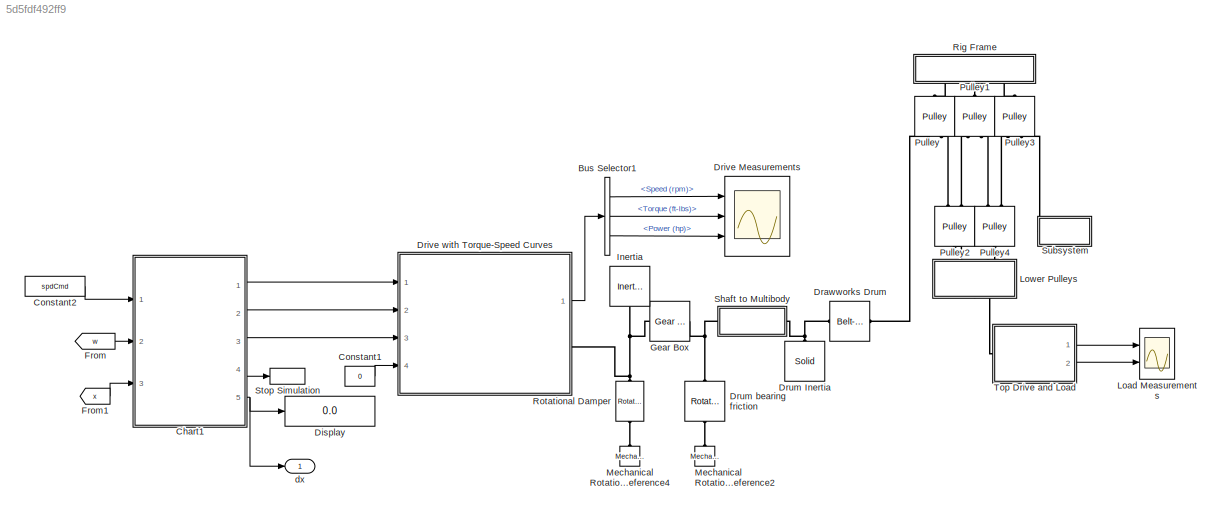
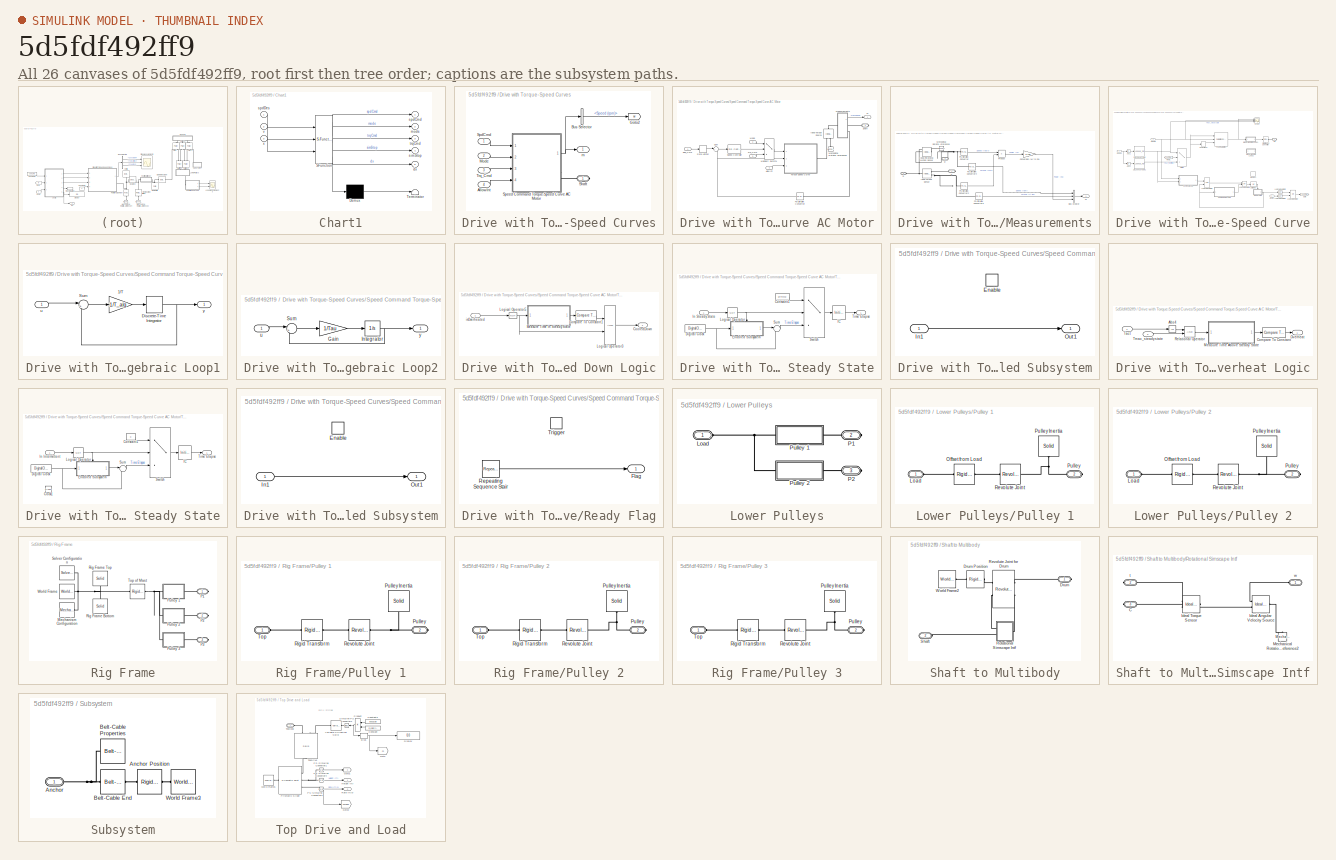
[diagram: thumbnail index - all 26 canvases of the model, root first then tree order]
MODEL slx_5d5fdf492ff9
KIND model
CONFIG AbsTol = auto
CONFIG EnableMultiTasking = off
CONFIG FixedStep = auto
CONFIG InitFcn = Ts = 10e-4;        % SPS/Overall Simulation time step\nTssc = 10*Ts;       % Simscape simulation time step\n\nG = 10;\nRdrum = 0.25;\nNp = 5;\nm_topdrive = 1000;\nm_drillstring = 22500;\nRpulley = Rdrum;\n\nm = m_topdrive + m_drillstring;\n\n% Top/Bottom Distance\nxtop = 48*0.3048;\nxbott = 0;\n\n% Maximum Torque/Power of Drive\nTmax = 8000*1.36;\nPmax = 1500*746;\n\n% Initial Conditions\nv0 = 0; %m/s\nx0 = 0; %m\n\n% Gr...<+14ch>
CONFIG MaxStep = auto
CONFIG MinStep = auto
CONFIG PreLoadFcn = addpath('CAD_Files');\nwarning('off','sm:sli:setup:compile:LocalSolverNotSupported');\n\nloadScale = 1;
CONFIG RelTol = 1e-3
CONFIG SampleTimeConstraint = Unconstrained
CONFIG Solver = ode3
CONFIG SolverName = ode3
CONFIG StartTime = 0.0
CONFIG StopTime = 1000
BLOCK [BusSelector] Bus Selector1
  OutputAsBus = off
  OutputSignals = Speed (rpm),Torque (ft-lbs),Power (hp)
  Ports = [1, 3]
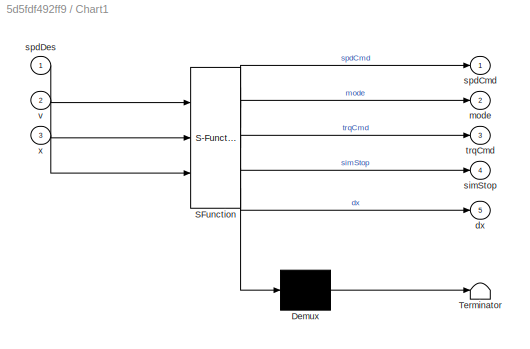
BLOCK [SubSystem] Chart1
  ErrorFcn = Stateflow.Translate.translate
  PermitHierarchicalResolution = ExplicitOnly
  Ports = [3, 5]
  RequestExecContextInheritance = off
  SFBlockType = Chart
  TreatAsAtomicUnit = on
BLOCK [Demux] Chart1/ Demux 
  Outputs = 1
  Ports = [1, 1]
BLOCK [S-Function] Chart1/ SFunction 
  EnableBusSupport = on
  FunctionName = sf_sfun
  PortCounts = [3 6]
  Ports = [3, 6]
  SFcnIsStateOwnerBlock = off
  SFunctionDeploymentMode = off
  Tag = Stateflow S-Function drawWorks_forOpt 1
BLOCK [Terminator] Chart1/ Terminator 
BLOCK [Outport] Chart1/dx
  IconDisplay = Port number
  Port = 5
BLOCK [Outport] Chart1/mode
  IconDisplay = Port number
  Port = 2
BLOCK [Outport] Chart1/simStop
  IconDisplay = Port number
  Port = 4
BLOCK [Outport] Chart1/spdCmd
  IconDisplay = Port number
BLOCK [Inport] Chart1/spdDes
  IconDisplay = Port number
BLOCK [Outport] Chart1/trqCmd
  IconDisplay = Port number
  Port = 3
BLOCK [Inport] Chart1/v
  IconDisplay = Port number
  Port = 2
BLOCK [Inport] Chart1/x
  IconDisplay = Port number
  Port = 3
BLOCK [Constant] Constant1
  Value = 0
BLOCK [Constant] Constant2
  Value = spdCmd
BLOCK [Display] Display
  Decimation = 1
  Ports = [1]
BLOCK [Reference] Drawworks Drum  REF=sm_lib/Belts and Cables/Belt-Cable Spool
  Ports = [0, 0, 0, 0, 0, 1, 1]
  SourceBlock = sm_lib/Belts and Cables/Belt-Cable Spool
  SourceProductBaseCode = MS
  SourceProductName = Simscape Multibody
  SourceType = Belt-Cable Spool
BLOCK [Scope] Drive Measurements
  Floating = off
  NumInputPorts = 3
  Ports = [3]
  ScopeSpecificationString = Simulink.scopes.TimeScopeBlockCfg('CurrentConfiguration', extmgr.ConfigurationSet(extmgr.Configuration('Core','General UI',true),extmgr.Configuration('Core','Source UI',true),extmgr.Configuration('Sources','WiredSimulink',true,'DataLoggingSaveFormat','Array','DataLoggingDecimation','1','DataLoggingDecimateData',true,'DataLoggingVariableName','ScopeData1'),extmgr.Configuration('Visuals','Time Domai...<+3075ch>
BLOCK [SubSystem] Drive with Torque-Speed Curves
  Ports = [4, 1, 0, 0, 0, 0, 1]
  RequestExecContextInheritance = off
BLOCK [Inport] Drive with Torque-Speed Curves/AllowInt
  IconDisplay = Port number
  Port = 4
BLOCK [BusSelector] Drive with Torque-Speed Curves/Bus Selector
  OutputAsBus = off
  OutputSignals = Speed (rpm)
  Ports = [1, 1]
BLOCK [Goto] Drive with Torque-Speed Curves/Goto2
  GotoTag = w
  TagVisibility = global
BLOCK [Inport] Drive with Torque-Speed Curves/Mode
  IconDisplay = Port number
  Port = 2
BLOCK [PMIOPort] Drive with Torque-Speed Curves/Shaft
  Side = Right
BLOCK [Inport] Drive with Torque-Speed Curves/SpdCmd
  IconDisplay = Port number
BLOCK [SubSystem] Drive with Torque-Speed Curves/Speed Command Torque-Speed Curve AC Motor
  Ports = [4, 1, 0, 0, 0, 0, 1]
  RequestExecContextInheritance = off
BLOCK [Inport] Drive with Torque-Speed Curves/Speed Command Torque-Speed Curve AC Motor/AllowInt
  IconDisplay = Port number
  Port = 4
BLOCK [Reference] Drive with Torque-Speed Curves/Speed Command Torque-Speed Curve AC Motor/Ideal Torque Source  REF=fl_lib/Mechanical/Mechanical Sources/Ideal Torque Source
  Ports = [0, 0, 0, 0, 0, 1, 2]
  SourceBlock = fl_lib/Mechanical/Mechanical Sources/Ideal Torque Source
  SourceProductBaseCode = SS
  SourceProductName = Simscape
  SourceType = Ideal Torque Source
BLOCK [SubSystem] Drive with Torque-Speed Curves/Speed Command Torque-Speed Curve AC Motor/Measurements
  Ports = [0, 1, 0, 0, 0, 1, 2]
  RequestExecContextInheritance = off
BLOCK [BusCreator] Drive with Torque-Speed Curves/Speed Command Torque-Speed Curve AC Motor/Measurements/Bus Creator
  DisplayOption = bar
  InheritFromInputs = on
  Inputs = 3
  Ports = [3, 1]
BLOCK [PMIOPort] Drive with Torque-Speed Curves/Speed Command Torque-Speed Curve AC Motor/Measurements/C
  Side = Right
BLOCK [Gain] Drive with Torque-Speed Curves/Speed Command Torque-Speed Curve AC Motor/Measurements/Conversion (W to hp)
  Gain = 1/746
  OutDataTypeStr = Inherit: Inherit via internal rule
  ParamDataTypeStr = Inherit: Inherit via internal rule
  SaturateOnIntegerOverflow = off
BLOCK [Reference] Drive with Torque-Speed Curves/Speed Command Torque-Speed Curve AC Motor/Measurements/Ideal Rotational Motion Sensor  REF=fl_lib/Mechanical/Mechanical Sensors/Ideal Rotational
Motion Sensor
  Ports = [0, 0, 0, 0, 0, 1, 3]
  SourceBlock = fl_lib/Mechanical/Mechanical Sensors/Ideal Rotational\nMotion Sensor
  SourceProductBaseCode = SS
  SourceProductName = Simscape
  SourceType = Ideal Rotational\nMotion Sensor
BLOCK [Reference] Drive with Torque-Speed Curves/Speed Command Torque-Speed Curve AC Motor/Measurements/Ideal Torque Sensor  REF=fl_lib/Mechanical/Mechanical Sensors/Ideal Torque Sensor
  Ports = [0, 0, 0, 0, 0, 1, 2]
  SourceBlock = fl_lib/Mechanical/Mechanical Sensors/Ideal Torque Sensor
  SourceProductBaseCode = SS
  SourceProductName = Simscape
  SourceType = Ideal Torque Sensor
BLOCK [Reference] Drive with Torque-Speed Curves/Speed Command Torque-Speed Curve AC Motor/Measurements/Mechanical Rotational Reference3  REF=fl_lib/Mechanical/Rotational Elements/Mechanical
Rotational Reference
  Ports = [0, 0, 0, 0, 0, 1]
  SourceBlock = fl_lib/Mechanical/Rotational Elements/Mechanical\nRotational Reference
  SourceProductBaseCode = SS
  SourceProductName = Simscape
  SourceType = Mechanical\nRotational Reference
BLOCK [Reference] Drive with Torque-Speed Curves/Speed Command Torque-Speed Curve AC Motor/Measurements/PS-Simulink Converter  REF=nesl_utility/PS-Simulink
Converter
  Ports = [0, 1, 0, 0, 0, 1]
  SourceBlock = nesl_utility/PS-Simulink\nConverter
  SourceProductBaseCode = SS
  SourceProductName = Simscape
  SourceType = PS-Simulink\nConverter
BLOCK [Reference] Drive with Torque-Speed Curves/Speed Command Torque-Speed Curve AC Motor/Measurements/PS-Simulink Converter2  REF=nesl_utility/PS-Simulink
Converter
  Ports = [0, 1, 0, 0, 0, 1]
  SourceBlock = nesl_utility/PS-Simulink\nConverter
  SourceProductBaseCode = SS
  SourceProductName = Simscape
  SourceType = PS-Simulink\nConverter
BLOCK [Reference] Drive with Torque-Speed Curves/Speed Command Torque-Speed Curve AC Motor/Measurements/PS-Simulink Converter3  REF=nesl_utility/PS-Simulink
Converter
  Ports = [0, 1, 0, 0, 0, 1]
  SourceBlock = nesl_utility/PS-Simulink\nConverter
  SourceProductBaseCode = SS
  SourceProductName = Simscape
  SourceType = PS-Simulink\nConverter
BLOCK [Reference] Drive with Torque-Speed Curves/Speed Command Torque-Speed Curve AC Motor/Measurements/PS-Simulink Converter4  REF=nesl_utility/PS-Simulink
Converter
  Ports = [0, 1, 0, 0, 0, 1]
  SourceBlock = nesl_utility/PS-Simulink\nConverter
  SourceProductBaseCode = SS
  SourceProductName = Simscape
  SourceType = PS-Simulink\nConverter
BLOCK [Product] Drive with Torque-Speed Curves/Speed Command Torque-Speed Curve AC Motor/Measurements/Product
  InputSameDT = off
  OutDataTypeStr = Inherit: Inherit via internal rule
  Ports = [2, 1]
  RndMeth = Floor
  SaturateOnIntegerOverflow = off
BLOCK [PMIOPort] Drive with Torque-Speed Curves/Speed Command Torque-Speed Curve AC Motor/Measurements/R
  Port = 2
  Side = Left
BLOCK [Outport] Drive with Torque-Speed Curves/Speed Command Torque-Speed Curve AC Motor/Measurements/m
  IconDisplay = Port number
BLOCK [PMIOPort] Drive with Torque-Speed Curves/Speed Command Torque-Speed Curve AC Motor/Measurements/w
  Port = 3
  Side = Right
BLOCK [Reference] Drive with Torque-Speed Curves/Speed Command Torque-Speed Curve AC Motor/Mechanical Rotational Reference3  REF=fl_lib/Mechanical/Rotational Elements/Mechanical
Rotational Reference
  Ports = [0, 0, 0, 0, 0, 1]
  SourceBlock = fl_lib/Mechanical/Rotational Elements/Mechanical\nRotational Reference
  SourceProductBaseCode = SS
  SourceProductName = Simscape
  SourceType = Mechanical\nRotational Reference
BLOCK [Inport] Drive with Torque-Speed Curves/Speed Command Torque-Speed Curve AC Motor/Mode
  IconDisplay = Port number
  Port = 2
BLOCK [MultiPortSwitch] Drive with Torque-Speed Curves/Speed Command Torque-Speed Curve AC Motor/Multiport Switch1
  InputSameDT = off
  Inputs = 2
  Ports = [3, 1]
BLOCK [Reference] Drive with Torque-Speed Curves/Speed Command Torque-Speed Curve AC Motor/PS-Simulink Converter  REF=nesl_utility/PS-Simulink
Converter
  Ports = [0, 1, 0, 0, 0, 1]
  SourceBlock = nesl_utility/PS-Simulink\nConverter
  SourceProductBaseCode = SS
  SourceProductName = Simscape
  SourceType = PS-Simulink\nConverter
BLOCK [RateLimiter] Drive with Torque-Speed Curves/Speed Command Torque-Speed Curve AC Motor/Rate Limiter
  FallingSlewLimit = -wrate
  RisingSlewLimit = wrate
  SampleTimeMode = inherited
BLOCK [PMIOPort] Drive with Torque-Speed Curves/Speed Command Torque-Speed Curve AC Motor/Shaft
  Side = Right
BLOCK [Inport] Drive with Torque-Speed Curves/Speed Command Torque-Speed Curve AC Motor/Spd_Cmd
  IconDisplay = Port number
BLOCK [Reference] Drive with Torque-Speed Curves/Speed Command Torque-Speed Curve AC Motor/Speed Controller  REF=simulink/Continuous/PID Controller
  Ports = [1, 1]
  SourceBlock = simulink/Continuous/PID Controller
  SourceProductBaseCode = SL
  SourceProductName = Simulink
  SourceType = PID 1dof
BLOCK [Sum] Drive with Torque-Speed Curves/Speed Command Torque-Speed Curve AC Motor/Sum
  IconShape = round
  InputSameDT = off
  Inputs = |+-
  OutDataTypeStr = Inherit: Inherit via internal rule
  Ports = [2, 1]
  SaturateOnIntegerOverflow = off
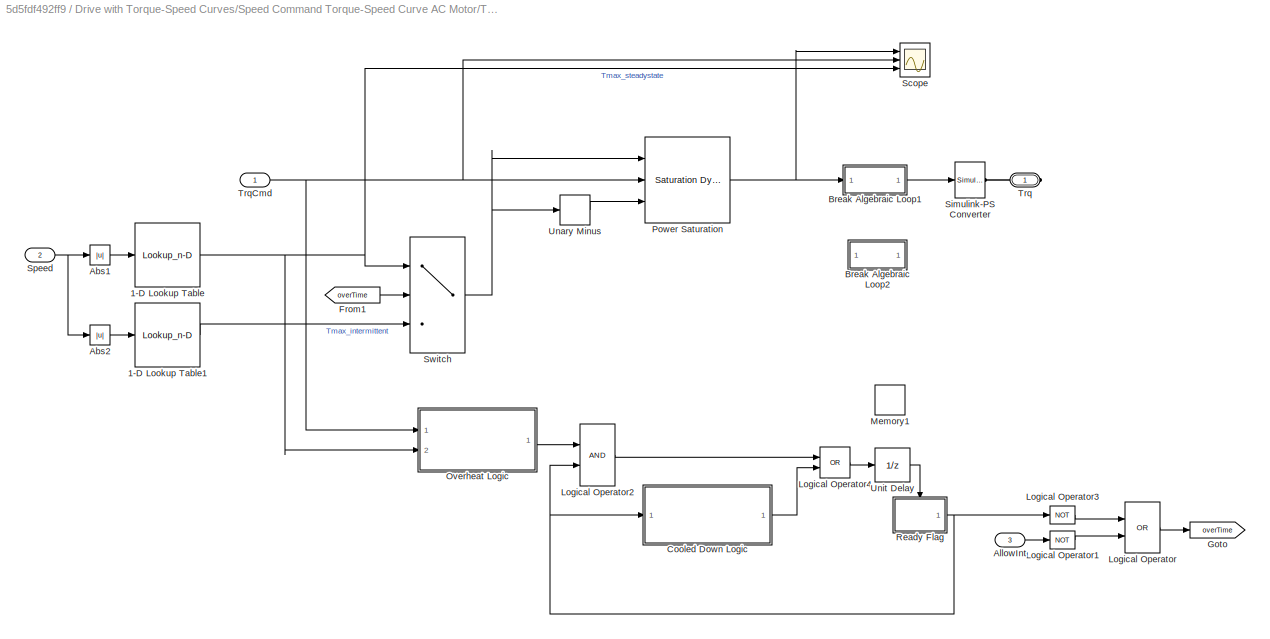
BLOCK [SubSystem] Drive with Torque-Speed Curves/Speed Command Torque-Speed Curve AC Motor/Torque-Speed Curve
  Ports = [3, 0, 0, 0, 0, 0, 1]
  RequestExecContextInheritance = off
BLOCK [Lookup_n-D] Drive with Torque-Speed Curves/Speed Command Torque-Speed Curve AC Motor/Torque-Speed Curve/1-D Lookup Table
  BreakpointsForDimension1 = contSpd
  InternalRulePriority = Speed
  NumberOfTableDimensions = 1
  Ports = [1, 1]
  RndMeth = Simplest
  Table = contTrq
BLOCK [Lookup_n-D] Drive with Torque-Speed Curves/Speed Command Torque-Speed Curve AC Motor/Torque-Speed Curve/1-D Lookup Table1
  BreakpointsForDimension1 = intSpd
  InternalRulePriority = Speed
  NumberOfTableDimensions = 1
  Ports = [1, 1]
  RndMeth = Simplest
  Table = intTrq
BLOCK [Abs] Drive with Torque-Speed Curves/Speed Command Torque-Speed Curve AC Motor/Torque-Speed Curve/Abs1
  SaturateOnIntegerOverflow = off
BLOCK [Abs] Drive with Torque-Speed Curves/Speed Command Torque-Speed Curve AC Motor/Torque-Speed Curve/Abs2
  SaturateOnIntegerOverflow = off
BLOCK [Inport] Drive with Torque-Speed Curves/Speed Command Torque-Speed Curve AC Motor/Torque-Speed Curve/AllowInt
  IconDisplay = Port number
  Port = 3
BLOCK [SubSystem] Drive with Torque-Speed Curves/Speed Command Torque-Speed Curve AC Motor/Torque-Speed Curve/Break Algebraic Loop1
  Ports = [1, 1]
  RequestExecContextInheritance = off
BLOCK [Gain] Drive with Torque-Speed Curves/Speed Command Torque-Speed Curve AC Motor/Torque-Speed Curve/Break Algebraic Loop1/1//T
  Gain = 1/T_alg
  OutDataTypeStr = Inherit: Inherit via internal rule
  ParamDataTypeStr = Inherit: Inherit via internal rule
  SaturateOnIntegerOverflow = off
BLOCK [DiscreteIntegrator] Drive with Torque-Speed Curves/Speed Command Torque-Speed Curve AC Motor/Torque-Speed Curve/Break Algebraic Loop1/Discrete-Time Integrator
  ICPrevOutput = DiscIntNeverNeededParam
  ICPrevScaledInput = DiscIntNeverNeededParam
  InitialCondition = min([Rdrum/(G*(Np-1))*(m_topdrive+m_drillstring)*9.81*0.737562*loadScale intTrq(1)])
  InitialConditionSetting = Auto
  Ports = [1, 1]
  SampleTime = -1
BLOCK [Sum] Drive with Torque-Speed Curves/Speed Command Torque-Speed Curve AC Motor/Torque-Speed Curve/Break Algebraic Loop1/Sum
  IconShape = round
  InputSameDT = off
  Inputs = |+-
  OutDataTypeStr = Inherit: Inherit via internal rule
  Ports = [2, 1]
  SaturateOnIntegerOverflow = off
BLOCK [Inport] Drive with Torque-Speed Curves/Speed Command Torque-Speed Curve AC Motor/Torque-Speed Curve/Break Algebraic Loop1/u
  IconDisplay = Port number
BLOCK [Outport] Drive with Torque-Speed Curves/Speed Command Torque-Speed Curve AC Motor/Torque-Speed Curve/Break Algebraic Loop1/y
  IconDisplay = Port number
BLOCK [SubSystem] Drive with Torque-Speed Curves/Speed Command Torque-Speed Curve AC Motor/Torque-Speed Curve/Break Algebraic Loop2
  Commented = on
  Ports = [1, 1]
  RequestExecContextInheritance = off
BLOCK [Gain] Drive with Torque-Speed Curves/Speed Command Torque-Speed Curve AC Motor/Torque-Speed Curve/Break Algebraic Loop2/Gain
  Gain = 1/Tau
  OutDataTypeStr = Inherit: Inherit via internal rule
  ParamDataTypeStr = Inherit: Inherit via internal rule
  SaturateOnIntegerOverflow = off
BLOCK [Integrator] Drive with Torque-Speed Curves/Speed Command Torque-Speed Curve AC Motor/Torque-Speed Curve/Break Algebraic Loop2/Integrator
  InitialCondition = Rdrum/(G*(Np-1))*(m_topdrive+m_drillstring)*9.81*0.737562
  Ports = [1, 1]
BLOCK [Sum] Drive with Torque-Speed Curves/Speed Command Torque-Speed Curve AC Motor/Torque-Speed Curve/Break Algebraic Loop2/Sum
  IconShape = round
  InputSameDT = off
  Inputs = |+-
  OutDataTypeStr = Inherit: Inherit via internal rule
  Ports = [2, 1]
  SaturateOnIntegerOverflow = off
BLOCK [Inport] Drive with Torque-Speed Curves/Speed Command Torque-Speed Curve AC Motor/Torque-Speed Curve/Break Algebraic Loop2/u
  IconDisplay = Port number
BLOCK [Outport] Drive with Torque-Speed Curves/Speed Command Torque-Speed Curve AC Motor/Torque-Speed Curve/Break Algebraic Loop2/y
  IconDisplay = Port number
BLOCK [SubSystem] Drive with Torque-Speed Curves/Speed Command Torque-Speed Curve AC Motor/Torque-Speed Curve/Cooled Down Logic
  Ports = [1, 1]
  RequestExecContextInheritance = off
BLOCK [Reference] Drive with Torque-Speed Curves/Speed Command Torque-Speed Curve AC Motor/Torque-Speed Curve/Cooled Down Logic/Compare To Constant1  REF=simulink/Logic and Bit
Operations/Compare
To Constant
  Ports = [1, 1]
  SourceBlock = simulink/Logic and Bit\nOperations/Compare\nTo Constant
  SourceProductBaseCode = SL
  SourceProductName = Simulink
  SourceType = Compare To Constant
BLOCK [Outport] Drive with Torque-Speed Curves/Speed Command Torque-Speed Curve AC Motor/Torque-Speed Curve/Cooled Down Logic/CooledDown
  IconDisplay = Port number
BLOCK [Logic] Drive with Torque-Speed Curves/Speed Command Torque-Speed Curve AC Motor/Torque-Speed Curve/Cooled Down Logic/Logical Operator3
  AllPortsSameDT = off
  OutDataTypeStr = boolean
  Ports = [2, 1]
BLOCK [Logic] Drive with Torque-Speed Curves/Speed Command Torque-Speed Curve AC Motor/Torque-Speed Curve/Cooled Down Logic/Logical Operator5
  AllPortsSameDT = off
  Operator = NOT
  OutDataTypeStr = boolean
  Ports = [1, 1]
BLOCK [SubSystem] Drive with Torque-Speed Curves/Speed Command Torque-Speed Curve AC Motor/Torque-Speed Curve/Cooled Down Logic/Measure Time In Steady State
  Ports = [1, 1]
  RequestExecContextInheritance = off
BLOCK [Constant] Drive with Torque-Speed Curves/Speed Command Torque-Speed Curve AC Motor/Torque-Speed Curve/Cooled Down Logic/Measure Time In Steady State/Constant1
  Value = offTime
BLOCK [DigitalClock] Drive with Torque-Speed Curves/Speed Command Torque-Speed Curve AC Motor/Torque-Speed Curve/Cooled Down Logic/Measure Time In Steady State/Digital Clock
  SampleTime = Tssc
BLOCK [SubSystem] Drive with Torque-Speed Curves/Speed Command Torque-Speed Curve AC Motor/Torque-Speed Curve/Cooled Down Logic/Measure Time In Steady State/Enabled Subsystem
  Ports = [1, 1, 1]
  RequestExecContextInheritance = off
  TreatAsAtomicUnit = on
BLOCK [EnablePort] Drive with Torque-Speed Curves/Speed Command Torque-Speed Curve AC Motor/Torque-Speed Curve/Cooled Down Logic/Measure Time In Steady State/Enabled Subsystem/Enable
  Ports = []
BLOCK [Inport] Drive with Torque-Speed Curves/Speed Command Torque-Speed Curve AC Motor/Torque-Speed Curve/Cooled Down Logic/Measure Time In Steady State/Enabled Subsystem/In1
  IconDisplay = Port number
BLOCK [Outport] Drive with Torque-Speed Curves/Speed Command Torque-Speed Curve AC Motor/Torque-Speed Curve/Cooled Down Logic/Measure Time In Steady State/Enabled Subsystem/Out1
  IconDisplay = Port number
BLOCK [InitialCondition] Drive with Torque-Speed Curves/Speed Command Torque-Speed Curve AC Motor/Torque-Speed Curve/Cooled Down Logic/Measure Time In Steady State/IC
  Value = offTime
BLOCK [Inport] Drive with Torque-Speed Curves/Speed Command Torque-Speed Curve AC Motor/Torque-Speed Curve/Cooled Down Logic/Measure Time In Steady State/In Steady State
  IconDisplay = Port number
BLOCK [Logic] Drive with Torque-Speed Curves/Speed Command Torque-Speed Curve AC Motor/Torque-Speed Curve/Cooled Down Logic/Measure Time In Steady State/Logical Operator
  AllPortsSameDT = off
  Operator = NOT
  OutDataTypeStr = boolean
  Ports = [1, 1]
BLOCK [Sum] Drive with Torque-Speed Curves/Speed Command Torque-Speed Curve AC Motor/Torque-Speed Curve/Cooled Down Logic/Measure Time In Steady State/Sum
  IconShape = round
  InputSameDT = off
  Inputs = |-+
  OutDataTypeStr = Inherit: Inherit via internal rule
  Ports = [2, 1]
  SaturateOnIntegerOverflow = off
BLOCK [Switch] Drive with Torque-Speed Curves/Speed Command Torque-Speed Curve AC Motor/Torque-Speed Curve/Cooled Down Logic/Measure Time In Steady State/Switch
  Criteria = u2 ~= 0
  InputSameDT = off
  SaturateOnIntegerOverflow = off
BLOCK [Outport] Drive with Torque-Speed Curves/Speed Command Torque-Speed Curve AC Motor/Torque-Speed Curve/Cooled Down Logic/Measure Time In Steady State/Time Elapse
  IconDisplay = Port number
BLOCK [Inport] Drive with Torque-Speed Curves/Speed Command Torque-Speed Curve AC Motor/Torque-Speed Curve/Cooled Down Logic/isOverheated
  IconDisplay = Port number
BLOCK [From] Drive with Torque-Speed Curves/Speed Command Torque-Speed Curve AC Motor/Torque-Speed Curve/From1
  GotoTag = overTime
BLOCK [Goto] Drive with Torque-Speed Curves/Speed Command Torque-Speed Curve AC Motor/Torque-Speed Curve/Goto
  GotoTag = overTime
BLOCK [Logic] Drive with Torque-Speed Curves/Speed Command Torque-Speed Curve AC Motor/Torque-Speed Curve/Logical Operator
  AllPortsSameDT = off
  Operator = OR
  OutDataTypeStr = boolean
  Ports = [2, 1]
BLOCK [Logic] Drive with Torque-Speed Curves/Speed Command Torque-Speed Curve AC Motor/Torque-Speed Curve/Logical Operator1
  AllPortsSameDT = off
  Operator = NOT
  OutDataTypeStr = boolean
  Ports = [1, 1]
BLOCK [Logic] Drive with Torque-Speed Curves/Speed Command Torque-Speed Curve AC Motor/Torque-Speed Curve/Logical Operator2
  AllPortsSameDT = off
  OutDataTypeStr = boolean
  Ports = [2, 1]
BLOCK [Logic] Drive with Torque-Speed Curves/Speed Command Torque-Speed Curve AC Motor/Torque-Speed Curve/Logical Operator3
  AllPortsSameDT = off
  Operator = NOT
  OutDataTypeStr = boolean
  Ports = [1, 1]
BLOCK [Logic] Drive with Torque-Speed Curves/Speed Command Torque-Speed Curve AC Motor/Torque-Speed Curve/Logical Operator4
  AllPortsSameDT = off
  Operator = OR
  OutDataTypeStr = boolean
  Ports = [2, 1]
BLOCK [Memory] Drive with Torque-Speed Curves/Speed Command Torque-Speed Curve AC Motor/Torque-Speed Curve/Memory1
  Commented = on
BLOCK [SubSystem] Drive with Torque-Speed Curves/Speed Command Torque-Speed Curve AC Motor/Torque-Speed Curve/Overheat Logic
  Ports = [2, 1]
  RequestExecContextInheritance = off
BLOCK [Abs] Drive with Torque-Speed Curves/Speed Command Torque-Speed Curve AC Motor/Torque-Speed Curve/Overheat Logic/Abs4
  SaturateOnIntegerOverflow = off
BLOCK [Reference] Drive with Torque-Speed Curves/Speed Command Torque-Speed Curve AC Motor/Torque-Speed Curve/Overheat Logic/Compare To Constant  REF=simulink/Logic and Bit
Operations/Compare
To Constant
  Ports = [1, 1]
  SourceBlock = simulink/Logic and Bit\nOperations/Compare\nTo Constant
  SourceProductBaseCode = SL
  SourceProductName = Simulink
  SourceType = Compare To Constant
BLOCK [SubSystem] Drive with Torque-Speed Curves/Speed Command Torque-Speed Curve AC Motor/Torque-Speed Curve/Overheat Logic/Measure Time Above Steady State
  Ports = [1, 1]
  RequestExecContextInheritance = off
BLOCK [Clock] Drive with Torque-Speed Curves/Speed Command Torque-Speed Curve AC Motor/Torque-Speed Curve/Overheat Logic/Measure Time Above Steady State/Clock1
  Commented = on
BLOCK [Constant] Drive with Torque-Speed Curves/Speed Command Torque-Speed Curve AC Motor/Torque-Speed Curve/Overheat Logic/Measure Time Above Steady State/Constant1
  Value = 0
BLOCK [DigitalClock] Drive with Torque-Speed Curves/Speed Command Torque-Speed Curve AC Motor/Torque-Speed Curve/Overheat Logic/Measure Time Above Steady State/Digital Clock
  SampleTime = Tssc
BLOCK [SubSystem] Drive with Torque-Speed Curves/Speed Command Torque-Speed Curve AC Motor/Torque-Speed Curve/Overheat Logic/Measure Time Above Steady State/Enabled Subsystem
  Ports = [1, 1, 1]
  RequestExecContextInheritance = off
  TreatAsAtomicUnit = on
BLOCK [EnablePort] Drive with Torque-Speed Curves/Speed Command Torque-Speed Curve AC Motor/Torque-Speed Curve/Overheat Logic/Measure Time Above Steady State/Enabled Subsystem/Enable
  Ports = []
BLOCK [Inport] Drive with Torque-Speed Curves/Speed Command Torque-Speed Curve AC Motor/Torque-Speed Curve/Overheat Logic/Measure Time Above Steady State/Enabled Subsystem/In1
  IconDisplay = Port number
BLOCK [Outport] Drive with Torque-Speed Curves/Speed Command Torque-Speed Curve AC Motor/Torque-Speed Curve/Overheat Logic/Measure Time Above Steady State/Enabled Subsystem/Out1
  IconDisplay = Port number
BLOCK [InitialCondition] Drive with Torque-Speed Curves/Speed Command Torque-Speed Curve AC Motor/Torque-Speed Curve/Overheat Logic/Measure Time Above Steady State/IC
  Value = 0
BLOCK [Inport] Drive with Torque-Speed Curves/Speed Command Torque-Speed Curve AC Motor/Torque-Speed Curve/Overheat Logic/Measure Time Above Steady State/In Intermittent
  IconDisplay = Port number
BLOCK [Logic] Drive with Torque-Speed Curves/Speed Command Torque-Speed Curve AC Motor/Torque-Speed Curve/Overheat Logic/Measure Time Above Steady State/Logical Operator
  AllPortsSameDT = off
  Operator = NOT
  OutDataTypeStr = boolean
  Ports = [1, 1]
BLOCK [Sum] Drive with Torque-Speed Curves/Speed Command Torque-Speed Curve AC Motor/Torque-Speed Curve/Overheat Logic/Measure Time Above Steady State/Sum
  IconShape = round
  InputSameDT = off
  Inputs = |-+
  OutDataTypeStr = Inherit: Inherit via internal rule
  Ports = [2, 1]
  SaturateOnIntegerOverflow = off
BLOCK [Switch] Drive with Torque-Speed Curves/Speed Command Torque-Speed Curve AC Motor/Torque-Speed Curve/Overheat Logic/Measure Time Above Steady State/Switch
  Criteria = u2 ~= 0
  InputSameDT = off
  SaturateOnIntegerOverflow = off
BLOCK [Outport] Drive with Torque-Speed Curves/Speed Command Torque-Speed Curve AC Motor/Torque-Speed Curve/Overheat Logic/Measure Time Above Steady State/Time Elapse
  IconDisplay = Port number
BLOCK [Outport] Drive with Torque-Speed Curves/Speed Command Torque-Speed Curve AC Motor/Torque-Speed Curve/Overheat Logic/Overheat
  IconDisplay = Port number
BLOCK [RelationalOperator] Drive with Torque-Speed Curves/Speed Command Torque-Speed Curve AC Motor/Torque-Speed Curve/Overheat Logic/Relational Operator
  InputSameDT = off
  OutDataTypeStr = boolean
  Ports = [2, 1]
  RndMeth = Simplest
BLOCK [Inport] Drive with Torque-Speed Curves/Speed Command Torque-Speed Curve AC Motor/Torque-Speed Curve/Overheat Logic/Tact
  IconDisplay = Port number
BLOCK [Inport] Drive with Torque-Speed Curves/Speed Command Torque-Speed Curve AC Motor/Torque-Speed Curve/Overheat Logic/Tmax_steadystate
  IconDisplay = Port number
  Port = 2
BLOCK [Reference] Drive with Torque-Speed Curves/Speed Command Torque-Speed Curve AC Motor/Torque-Speed Curve/Power Saturation  REF=simulink/Discontinuities/Saturation
Dynamic
  Ports = [3, 1]
  SourceBlock = simulink/Discontinuities/Saturation\nDynamic
  SourceProductBaseCode = SL
  SourceProductName = Simulink
  SourceType = Saturation Dynamic
BLOCK [SubSystem] Drive with Torque-Speed Curves/Speed Command Torque-Speed Curve AC Motor/Torque-Speed Curve/Ready Flag
  Ports = [0, 1, 0, 1]
  RequestExecContextInheritance = off
  TreatAsAtomicUnit = on
BLOCK [Outport] Drive with Torque-Speed Curves/Speed Command Torque-Speed Curve AC Motor/Torque-Speed Curve/Ready Flag/Flag
  IconDisplay = Port number
  InitialOutput = 1
BLOCK [Reference] Drive with Torque-Speed Curves/Speed Command Torque-Speed Curve AC Motor/Torque-Speed Curve/Ready Flag/Repeating Sequence Stair  REF=simulink/Sources/Repeating
Sequence
Stair
  Ports = [0, 1]
  SourceBlock = simulink/Sources/Repeating\nSequence\nStair
  SourceProductBaseCode = SL
  SourceProductName = Simulink
  SourceType = Repeating Sequence Stair
BLOCK [TriggerPort] Drive with Torque-Speed Curves/Speed Command Torque-Speed Curve AC Motor/Torque-Speed Curve/Ready Flag/Trigger
  Ports = []
  StatesWhenEnabling = held
  VariantControl = Variant
BLOCK [Scope] Drive with Torque-Speed Curves/Speed Command Torque-Speed Curve AC Motor/Torque-Speed Curve/Scope
  Floating = off
  NumInputPorts = 3
  Ports = [3]
  ScopeSpecificationString = Simulink.scopes.TimeScopeBlockCfg('CurrentConfiguration', extmgr.ConfigurationSet(extmgr.Configuration('Core','General UI',true),extmgr.Configuration('Core','Source UI',true),extmgr.Configuration('Sources','WiredSimulink',true,'DataLoggingVariableName','ScopeData2'),extmgr.Configuration('Visuals','Time Domain',true,'SerializedDisplays',{struct('MinYLimReal','-124998790.38695','MaxYLimReal','112499...<+1569ch>
BLOCK [Reference] Drive with Torque-Speed Curves/Speed Command Torque-Speed Curve AC Motor/Torque-Speed Curve/Simulink-PS Converter  REF=nesl_utility/Simulink-PS
Converter
  Ports = [1, 0, 0, 0, 0, 0, 1]
  SourceBlock = nesl_utility/Simulink-PS\nConverter
  SourceProductBaseCode = SS
  SourceProductName = Simscape
  SourceType = Simulink-PS\nConverter
BLOCK [Inport] Drive with Torque-Speed Curves/Speed Command Torque-Speed Curve AC Motor/Torque-Speed Curve/Speed
  IconDisplay = Port number
  Port = 2
BLOCK [Switch] Drive with Torque-Speed Curves/Speed Command Torque-Speed Curve AC Motor/Torque-Speed Curve/Switch
  Criteria = u2 > Threshold
  InputSameDT = off
  SaturateOnIntegerOverflow = off
BLOCK [PMIOPort] Drive with Torque-Speed Curves/Speed Command Torque-Speed Curve AC Motor/Torque-Speed Curve/Trq
  Side = Right
BLOCK [Inport] Drive with Torque-Speed Curves/Speed Command Torque-Speed Curve AC Motor/Torque-Speed Curve/TrqCmd
  IconDisplay = Port number
BLOCK [UnaryMinus] Drive with Torque-Speed Curves/Speed Command Torque-Speed Curve AC Motor/Torque-Speed Curve/Unary Minus
BLOCK [UnitDelay] Drive with Torque-Speed Curves/Speed Command Torque-Speed Curve AC Motor/Torque-Speed Curve/Unit Delay
  InputProcessing = Elements as channels (sample based)
  SampleTime = Tssc
BLOCK [Inport] Drive with Torque-Speed Curves/Speed Command Torque-Speed Curve AC Motor/Trq_Cmd
  IconDisplay = Port number
  Port = 3
BLOCK [Outport] Drive with Torque-Speed Curves/Speed Command Torque-Speed Curve AC Motor/m
  IconDisplay = Port number
BLOCK [Inport] Drive with Torque-Speed Curves/Trq_Cmd
  IconDisplay = Port number
  Port = 3
BLOCK [Outport] Drive with Torque-Speed Curves/m
  IconDisplay = Port number
BLOCK [Reference] Drum Inertia  REF=sm_lib/Body Elements/Solid
  Ports = [0, 0, 0, 0, 0, 1]
  SourceBlock = sm_lib/Body Elements/Solid
  SourceProductBaseCode = MS
  SourceProductName = Simscape Multibody
  SourceType = Solid
BLOCK [Reference] Drum bearing friction  REF=fl_lib/Mechanical/Rotational Elements/Rotational Friction
  Ports = [0, 0, 0, 0, 0, 1, 1]
  SourceBlock = fl_lib/Mechanical/Rotational Elements/Rotational Friction
  SourceProductBaseCode = SS
  SourceProductName = Simscape
  SourceType = Rotational Friction
BLOCK [From] From
  GotoTag = w
  TagVisibility = global
BLOCK [From] From1
  GotoTag = x
  TagVisibility = global
BLOCK [Reference] Gear Box  REF=fl_lib/Mechanical/Mechanisms/Gear Box
  Ports = [0, 0, 0, 0, 0, 1, 1]
  SourceBlock = fl_lib/Mechanical/Mechanisms/Gear Box
  SourceProductBaseCode = SS
  SourceProductName = Simscape
  SourceType = Gear Box
BLOCK [Reference] Inertia  REF=fl_lib/Mechanical/Rotational Elements/Inertia
  Ports = [0, 0, 0, 0, 0, 1]
  SourceBlock = fl_lib/Mechanical/Rotational Elements/Inertia
  SourceProductBaseCode = SS
  SourceProductName = Simscape
  SourceType = Inertia
BLOCK [Scope] Load Measurements
  Floating = off
  NumInputPorts = 2
  Ports = [2]
  ScopeSpecificationString = Simulink.scopes.TimeScopeBlockCfg('CurrentConfiguration', extmgr.ConfigurationSet(extmgr.Configuration('Core','General UI',true),extmgr.Configuration('Core','Source UI',true),extmgr.Configuration('Sources','WiredSimulink',true,'DataLoggingVariableName','ScopeData2','SampleTime','Tssc'),extmgr.Configuration('Visuals','Time Domain',true,'SerializedDisplays',{struct('MinYLimReal','-60.74678','MaxYLim...<+2159ch>
BLOCK [SubSystem] Lower Pulleys
  Ports = [0, 0, 0, 0, 0, 1, 2]
  RequestExecContextInheritance = off
BLOCK [PMIOPort] Lower Pulleys/Load
  Side = Left
BLOCK [PMIOPort] Lower Pulleys/P1
  Port = 2
  Side = Right
BLOCK [PMIOPort] Lower Pulleys/P2
  Port = 3
  Side = Right
BLOCK [SubSystem] Lower Pulleys/Pulley 1
  Ports = [0, 0, 0, 0, 0, 1, 1]
  RequestExecContextInheritance = off
BLOCK [PMIOPort] Lower Pulleys/Pulley 1/Load
  Side = Left
BLOCK [Reference] Lower Pulleys/Pulley 1/Offset from Load  REF=sm_lib/Frames and
Transforms/Rigid
Transform
  Ports = [0, 0, 0, 0, 0, 1, 1]
  SourceBlock = sm_lib/Frames and\nTransforms/Rigid\nTransform
  SourceProductBaseCode = MS
  SourceProductName = Simscape Multibody
  SourceType = Rigid\nTransform
BLOCK [PMIOPort] Lower Pulleys/Pulley 1/Pulley
  Port = 2
  Side = Right
BLOCK [Reference] Lower Pulleys/Pulley 1/Pulley Inertia  REF=sm_lib/Body Elements/Solid
  Ports = [0, 0, 0, 0, 0, 1]
  SourceBlock = sm_lib/Body Elements/Solid
  SourceProductBaseCode = MS
  SourceProductName = Simscape Multibody
  SourceType = Solid
BLOCK [Reference] Lower Pulleys/Pulley 1/Revolute Joint  REF=sm_lib/Joints/Revolute Joint
  Ports = [0, 0, 0, 0, 0, 1, 1]
  SourceBlock = sm_lib/Joints/Revolute Joint
  SourceProductBaseCode = MS
  SourceProductName = Simscape Multibody
  SourceType = Revolute Joint
BLOCK [SubSystem] Lower Pulleys/Pulley 2
  Ports = [0, 0, 0, 0, 0, 1, 1]
  RequestExecContextInheritance = off
BLOCK [PMIOPort] Lower Pulleys/Pulley 2/Load
  Side = Left
BLOCK [Reference] Lower Pulleys/Pulley 2/Offset from Load  REF=sm_lib/Frames and
Transforms/Rigid
Transform
  Ports = [0, 0, 0, 0, 0, 1, 1]
  SourceBlock = sm_lib/Frames and\nTransforms/Rigid\nTransform
  SourceProductBaseCode = MS
  SourceProductName = Simscape Multibody
  SourceType = Rigid\nTransform
BLOCK [PMIOPort] Lower Pulleys/Pulley 2/Pulley
  Port = 2
  Side = Right
BLOCK [Reference] Lower Pulleys/Pulley 2/Pulley Inertia  REF=sm_lib/Body Elements/Solid
  Ports = [0, 0, 0, 0, 0, 1]
  SourceBlock = sm_lib/Body Elements/Solid
  SourceProductBaseCode = MS
  SourceProductName = Simscape Multibody
  SourceType = Solid
BLOCK [Reference] Lower Pulleys/Pulley 2/Revolute Joint  REF=sm_lib/Joints/Revolute Joint
  Ports = [0, 0, 0, 0, 0, 1, 1]
  SourceBlock = sm_lib/Joints/Revolute Joint
  SourceProductBaseCode = MS
  SourceProductName = Simscape Multibody
  SourceType = Revolute Joint
BLOCK [Reference] Mechanical Rotational Reference2  REF=fl_lib/Mechanical/Rotational Elements/Mechanical
Rotational Reference
  Ports = [0, 0, 0, 0, 0, 1]
  SourceBlock = fl_lib/Mechanical/Rotational Elements/Mechanical\nRotational Reference
  SourceProductBaseCode = SS
  SourceProductName = Simscape
  SourceType = Mechanical\nRotational Reference
BLOCK [Reference] Mechanical Rotational Reference4  REF=fl_lib/Mechanical/Rotational Elements/Mechanical
Rotational Reference
  Ports = [0, 0, 0, 0, 0, 1]
  SourceBlock = fl_lib/Mechanical/Rotational Elements/Mechanical\nRotational Reference
  SourceProductBaseCode = SS
  SourceProductName = Simscape
  SourceType = Mechanical\nRotational Reference
BLOCK [Reference] Pulley  REF=sm_lib/Belts and Cables/Pulley
  Ports = [0, 0, 0, 0, 0, 1, 2]
  SourceBlock = sm_lib/Belts and Cables/Pulley
  SourceProductBaseCode = MS
  SourceProductName = Simscape Multibody
  SourceType = Pulley
BLOCK [Reference] Pulley1  REF=sm_lib/Belts and Cables/Pulley
  Ports = [0, 0, 0, 0, 0, 1, 2]
  SourceBlock = sm_lib/Belts and Cables/Pulley
  SourceProductBaseCode = MS
  SourceProductName = Simscape Multibody
  SourceType = Pulley
BLOCK [Reference] Pulley2  REF=sm_lib/Belts and Cables/Pulley
  Ports = [0, 0, 0, 0, 0, 1, 2]
  SourceBlock = sm_lib/Belts and Cables/Pulley
  SourceProductBaseCode = MS
  SourceProductName = Simscape Multibody
  SourceType = Pulley
BLOCK [Reference] Pulley3  REF=sm_lib/Belts and Cables/Pulley
  Ports = [0, 0, 0, 0, 0, 1, 2]
  SourceBlock = sm_lib/Belts and Cables/Pulley
  SourceProductBaseCode = MS
  SourceProductName = Simscape Multibody
  SourceType = Pulley
BLOCK [Reference] Pulley4  REF=sm_lib/Belts and Cables/Pulley
  Ports = [0, 0, 0, 0, 0, 1, 2]
  SourceBlock = sm_lib/Belts and Cables/Pulley
  SourceProductBaseCode = MS
  SourceProductName = Simscape Multibody
  SourceType = Pulley
BLOCK [SubSystem] Rig Frame
  Ports = [0, 0, 0, 0, 0, 0, 3]
  RequestExecContextInheritance = off
BLOCK [Reference] Rig Frame/Mechanism Configuration  REF=sm_lib/Utilities/Mechanism
Configuration
  Ports = [0, 0, 0, 0, 0, 0, 1]
  SourceBlock = sm_lib/Utilities/Mechanism\nConfiguration
  SourceProductBaseCode = MS
  SourceProductName = Simscape Multibody
  SourceType = Mechanism\nConfiguration
BLOCK [PMIOPort] Rig Frame/P1
  Side = Right
BLOCK [PMIOPort] Rig Frame/P2
  Port = 2
  Side = Right
BLOCK [PMIOPort] Rig Frame/P3
  Port = 3
  Side = Right
BLOCK [SubSystem] Rig Frame/Pulley 1
  Ports = [0, 0, 0, 0, 0, 1, 1]
  RequestExecContextInheritance = off
BLOCK [PMIOPort] Rig Frame/Pulley 1/Pulley
  Port = 2
  Side = Right
BLOCK [Reference] Rig Frame/Pulley 1/Pulley Inertia  REF=sm_lib/Body Elements/Solid
  Ports = [0, 0, 0, 0, 0, 1]
  SourceBlock = sm_lib/Body Elements/Solid
  SourceProductBaseCode = MS
  SourceProductName = Simscape Multibody
  SourceType = Solid
BLOCK [Reference] Rig Frame/Pulley 1/Revolute Joint  REF=sm_lib/Joints/Revolute Joint
  Ports = [0, 0, 0, 0, 0, 1, 1]
  SourceBlock = sm_lib/Joints/Revolute Joint
  SourceProductBaseCode = MS
  SourceProductName = Simscape Multibody
  SourceType = Revolute Joint
BLOCK [Reference] Rig Frame/Pulley 1/Rigid Transform  REF=sm_lib/Frames and
Transforms/Rigid
Transform
  Ports = [0, 0, 0, 0, 0, 1, 1]
  SourceBlock = sm_lib/Frames and\nTransforms/Rigid\nTransform
  SourceProductBaseCode = MS
  SourceProductName = Simscape Multibody
  SourceType = Rigid\nTransform
BLOCK [PMIOPort] Rig Frame/Pulley 1/Top
  Side = Left
BLOCK [SubSystem] Rig Frame/Pulley 2
  Ports = [0, 0, 0, 0, 0, 1, 1]
  RequestExecContextInheritance = off
BLOCK [PMIOPort] Rig Frame/Pulley 2/Pulley
  Port = 2
  Side = Right
BLOCK [Reference] Rig Frame/Pulley 2/Pulley Inertia  REF=sm_lib/Body Elements/Solid
  Ports = [0, 0, 0, 0, 0, 1]
  SourceBlock = sm_lib/Body Elements/Solid
  SourceProductBaseCode = MS
  SourceProductName = Simscape Multibody
  SourceType = Solid
BLOCK [Reference] Rig Frame/Pulley 2/Revolute Joint  REF=sm_lib/Joints/Revolute Joint
  Ports = [0, 0, 0, 0, 0, 1, 1]
  SourceBlock = sm_lib/Joints/Revolute Joint
  SourceProductBaseCode = MS
  SourceProductName = Simscape Multibody
  SourceType = Revolute Joint
BLOCK [Reference] Rig Frame/Pulley 2/Rigid Transform  REF=sm_lib/Frames and
Transforms/Rigid
Transform
  Ports = [0, 0, 0, 0, 0, 1, 1]
  SourceBlock = sm_lib/Frames and\nTransforms/Rigid\nTransform
  SourceProductBaseCode = MS
  SourceProductName = Simscape Multibody
  SourceType = Rigid\nTransform
BLOCK [PMIOPort] Rig Frame/Pulley 2/Top
  Side = Left
BLOCK [SubSystem] Rig Frame/Pulley 3
  Ports = [0, 0, 0, 0, 0, 1, 1]
  RequestExecContextInheritance = off
BLOCK [PMIOPort] Rig Frame/Pulley 3/Pulley
  Port = 2
  Side = Right
BLOCK [Reference] Rig Frame/Pulley 3/Pulley Inertia  REF=sm_lib/Body Elements/Solid
  Ports = [0, 0, 0, 0, 0, 1]
  SourceBlock = sm_lib/Body Elements/Solid
  SourceProductBaseCode = MS
  SourceProductName = Simscape Multibody
  SourceType = Solid
BLOCK [Reference] Rig Frame/Pulley 3/Revolute Joint  REF=sm_lib/Joints/Revolute Joint
  Ports = [0, 0, 0, 0, 0, 1, 1]
  SourceBlock = sm_lib/Joints/Revolute Joint
  SourceProductBaseCode = MS
  SourceProductName = Simscape Multibody
  SourceType = Revolute Joint
BLOCK [Reference] Rig Frame/Pulley 3/Rigid Transform  REF=sm_lib/Frames and
Transforms/Rigid
Transform
  Ports = [0, 0, 0, 0, 0, 1, 1]
  SourceBlock = sm_lib/Frames and\nTransforms/Rigid\nTransform
  SourceProductBaseCode = MS
  SourceProductName = Simscape Multibody
  SourceType = Rigid\nTransform
BLOCK [PMIOPort] Rig Frame/Pulley 3/Top
  Side = Left
BLOCK [Reference] Rig Frame/Rig Frame Bottom  REF=sm_lib/Body Elements/Solid
  Ports = [0, 0, 0, 0, 0, 1]
  SourceBlock = sm_lib/Body Elements/Solid
  SourceProductBaseCode = MS
  SourceProductName = Simscape Multibody
  SourceType = Solid
BLOCK [Reference] Rig Frame/Rig Frame Top  REF=sm_lib/Body Elements/Solid
  Ports = [0, 0, 0, 0, 0, 1]
  SourceBlock = sm_lib/Body Elements/Solid
  SourceProductBaseCode = MS
  SourceProductName = Simscape Multibody
  SourceType = Solid
BLOCK [Reference] Rig Frame/Solver Configuration   REF=nesl_utility/Solver
Configuration
  Ports = [0, 0, 0, 0, 0, 0, 1]
  SourceBlock = nesl_utility/Solver\nConfiguration
  SourceProductBaseCode = SS
  SourceProductName = Simscape
  SourceType = Solver\nConfiguration
BLOCK [Reference] Rig Frame/Top of Mast  REF=sm_lib/Frames and
Transforms/Rigid
Transform
  Ports = [0, 0, 0, 0, 0, 1, 1]
  SourceBlock = sm_lib/Frames and\nTransforms/Rigid\nTransform
  SourceProductBaseCode = MS
  SourceProductName = Simscape Multibody
  SourceType = Rigid\nTransform
BLOCK [Reference] Rig Frame/World Frame  REF=sm_lib/Frames and
Transforms/World Frame
  Ports = [0, 0, 0, 0, 0, 0, 1]
  SourceBlock = sm_lib/Frames and\nTransforms/World Frame
  SourceProductBaseCode = MS
  SourceProductName = Simscape Multibody
  SourceType = World Frame
BLOCK [Reference] Rotational Damper  REF=fl_lib/Mechanical/Rotational Elements/Rotational Damper
  Ports = [0, 0, 0, 0, 0, 1, 1]
  SourceBlock = fl_lib/Mechanical/Rotational Elements/Rotational Damper
  SourceProductBaseCode = SS
  SourceProductName = Simscape
  SourceType = Rotational Damper
BLOCK [SubSystem] Shaft to Multibody
  Ports = [0, 0, 0, 0, 0, 1, 1]
  RequestExecContextInheritance = off
BLOCK [PMIOPort] Shaft to Multibody/Drum
  Side = Right
BLOCK [Reference] Shaft to Multibody/Drum Position  REF=sm_lib/Frames and
Transforms/Rigid
Transform
  Ports = [0, 0, 0, 0, 0, 1, 1]
  SourceBlock = sm_lib/Frames and\nTransforms/Rigid\nTransform
  SourceProductBaseCode = MS
  SourceProductName = Simscape Multibody
  SourceType = Rigid\nTransform
BLOCK [Reference] Shaft to Multibody/Revolute Joint for Drum  REF=sm_lib/Joints/Revolute Joint
  Ports = [0, 0, 0, 0, 0, 2, 2]
  SourceBlock = sm_lib/Joints/Revolute Joint
  SourceProductBaseCode = MS
  SourceProductName = Simscape Multibody
  SourceType = Revolute Joint
BLOCK [SubSystem] Shaft to Multibody/Rotational Simscape Intf
  Ports = [0, 0, 0, 0, 0, 1, 2]
  RequestExecContextInheritance = off
BLOCK [PMIOPort] Shaft to Multibody/Rotational Simscape Intf/C
  Port = 3
  Side = Right
BLOCK [Reference] Shaft to Multibody/Rotational Simscape Intf/Ideal Angular Velocity Source  REF=fl_lib/Mechanical/Mechanical Sources/Ideal Angular
Velocity Source
  Ports = [0, 0, 0, 0, 0, 1, 2]
  SourceBlock = fl_lib/Mechanical/Mechanical Sources/Ideal Angular\nVelocity Source
  SourceProductBaseCode = SS
  SourceProductName = Simscape
  SourceType = Ideal Angular\nVelocity Source
BLOCK [Reference] Shaft to Multibody/Rotational Simscape Intf/Ideal Torque Sensor  REF=fl_lib/Mechanical/Mechanical Sensors/Ideal Torque Sensor
  Ports = [0, 0, 0, 0, 0, 1, 2]
  SourceBlock = fl_lib/Mechanical/Mechanical Sensors/Ideal Torque Sensor
  SourceProductBaseCode = SS
  SourceProductName = Simscape
  SourceType = Ideal Torque Sensor
BLOCK [Reference] Shaft to Multibody/Rotational Simscape Intf/Mechanical Rotational Reference2  REF=fl_lib/Mechanical/Rotational Elements/Mechanical
Rotational Reference
  Ports = [0, 0, 0, 0, 0, 1]
  SourceBlock = fl_lib/Mechanical/Rotational Elements/Mechanical\nRotational Reference
  SourceProductBaseCode = SS
  SourceProductName = Simscape
  SourceType = Mechanical\nRotational Reference
BLOCK [PMIOPort] Shaft to Multibody/Rotational Simscape Intf/t
  Port = 2
  Side = Right
BLOCK [PMIOPort] Shaft to Multibody/Rotational Simscape Intf/w
  Side = Left
BLOCK [PMIOPort] Shaft to Multibody/Shaft
  Port = 2
  Side = Left
BLOCK [Reference] Shaft to Multibody/World Frame2  REF=sm_lib/Frames and
Transforms/World Frame
  Ports = [0, 0, 0, 0, 0, 0, 1]
  SourceBlock = sm_lib/Frames and\nTransforms/World Frame
  SourceProductBaseCode = MS
  SourceProductName = Simscape Multibody
  SourceType = World Frame
BLOCK [Stop] Stop Simulation
BLOCK [SubSystem] Subsystem
  Ports = [0, 0, 0, 0, 0, 1]
  RequestExecContextInheritance = off
BLOCK [PMIOPort] Subsystem/Anchor
  Side = Left
BLOCK [Reference] Subsystem/Anchor Position  REF=sm_lib/Frames and
Transforms/Rigid
Transform
  Ports = [0, 0, 0, 0, 0, 1, 1]
  SourceBlock = sm_lib/Frames and\nTransforms/Rigid\nTransform
  SourceProductBaseCode = MS
  SourceProductName = Simscape Multibody
  SourceType = Rigid\nTransform
BLOCK [Reference] Subsystem/Belt-Cable End  REF=sm_lib/Belts and Cables/Belt-Cable End
  Ports = [0, 0, 0, 0, 0, 1, 1]
  SourceBlock = sm_lib/Belts and Cables/Belt-Cable End
  SourceProductBaseCode = MS
  SourceProductName = Simscape Multibody
  SourceType = Belt-Cable End
BLOCK [Reference] Subsystem/Belt-Cable Properties  REF=sm_lib/Belts and Cables/Belt-Cable
Properties
  Ports = [0, 0, 0, 0, 0, 1]
  SourceBlock = sm_lib/Belts and Cables/Belt-Cable\nProperties
  SourceProductBaseCode = MS
  SourceProductName = Simscape Multibody
  SourceType = Belt-Cable\nProperties
BLOCK [Reference] Subsystem/World Frame3  REF=sm_lib/Frames and
Transforms/World Frame
  Ports = [0, 0, 0, 0, 0, 0, 1]
  SourceBlock = sm_lib/Frames and\nTransforms/World Frame
  SourceProductBaseCode = MS
  SourceProductName = Simscape Multibody
  SourceType = World Frame
BLOCK [SubSystem] Top Drive and Load
  Ports = [0, 2, 0, 0, 0, 1]
  RequestExecContextInheritance = off
BLOCK [Bias] Top Drive and Load/Bias
  Bias = m_topdrive
  SaturateOnIntegerOverflow = off
BLOCK [Constant] Top Drive and Load/Constant
  Value = m_drillstring
BLOCK [Constant] Top Drive and Load/Constant3
  Value = loadScale
BLOCK [Display] Top Drive and Load/Display
  Decimation = 1
  Ports = [1]
BLOCK [Goto] Top Drive and Load/Goto
  Commented = on
  GotoTag = m
  TagVisibility = global
BLOCK [Goto] Top Drive and Load/Goto1
  GotoTag = x
  TagVisibility = global
BLOCK [Goto] Top Drive and Load/Goto2
  Commented = on
  GotoTag = vmass
  TagVisibility = global
BLOCK [Outport] Top Drive and Load/Height (ft)
  IconDisplay = Port number
BLOCK [Reference] Top Drive and Load/PS-Simulink Converter1  REF=nesl_utility/PS-Simulink
Converter
  Ports = [0, 1, 0, 0, 0, 1]
  SourceBlock = nesl_utility/PS-Simulink\nConverter
  SourceProductBaseCode = SS
  SourceProductName = Simscape
  SourceType = PS-Simulink\nConverter
BLOCK [Reference] Top Drive and Load/PS-Simulink Converter3  REF=nesl_utility/PS-Simulink
Converter
  Ports = [0, 1, 0, 0, 0, 1]
  SourceBlock = nesl_utility/PS-Simulink\nConverter
  SourceProductBaseCode = SS
  SourceProductName = Simscape
  SourceType = PS-Simulink\nConverter
BLOCK [Reference] Top Drive and Load/PS-Simulink Converter4  REF=nesl_utility/PS-Simulink
Converter
  Ports = [0, 1, 0, 0, 0, 1]
  SourceBlock = nesl_utility/PS-Simulink\nConverter
  SourceProductBaseCode = SS
  SourceProductName = Simscape
  SourceType = PS-Simulink\nConverter
BLOCK [Reference] Top Drive and Load/Prismatic Slider  REF=sm_lib/Joints/Prismatic
Joint
  Ports = [0, 0, 0, 0, 0, 1, 3]
  SourceBlock = sm_lib/Joints/Prismatic\nJoint
  SourceProductBaseCode = MS
  SourceProductName = Simscape Multibody
  SourceType = Prismatic\nJoint
BLOCK [Product] Top Drive and Load/Product
  InputSameDT = off
  OutDataTypeStr = Inherit: Inherit via internal rule
  Ports = [2, 1]
  RndMeth = Floor
  SaturateOnIntegerOverflow = off
BLOCK [Outport] Top Drive and Load/Rate (ft//s)
  IconDisplay = Port number
  Port = 2
BLOCK [Reference] Top Drive and Load/Simulink-PS Converter2  REF=nesl_utility/Simulink-PS
Converter
  Ports = [1, 0, 0, 0, 0, 0, 1]
  SourceBlock = nesl_utility/Simulink-PS\nConverter
  SourceProductBaseCode = SS
  SourceProductName = Simscape
  SourceType = Simulink-PS\nConverter
BLOCK [Reference] Top Drive and Load/TopDrive  REF=sm_lib/Body Elements/Solid
  Ports = [0, 0, 0, 0, 0, 2, 1]
  SourceBlock = sm_lib/Body Elements/Solid
  SourceProductBaseCode = MS
  SourceProductName = Simscape Multibody
  SourceType = Solid
BLOCK [PMIOPort] Top Drive and Load/TopHook
  Side = Left
BLOCK [Reference] Top Drive and Load/Variable Cylindrical Solid  REF=sm_lib/Body Elements/Variable Mass/Variable
Cylindrical Solid
  Ports = [0, 0, 0, 0, 0, 1, 1]
  SourceBlock = sm_lib/Body Elements/Variable Mass/Variable\nCylindrical Solid
  SourceProductBaseCode = MS
  SourceProductName = Simscape Multibody
  SourceType = Variable\nCylindrical Solid
BLOCK [Reference] Top Drive and Load/World Frame1  REF=sm_lib/Frames and
Transforms/World Frame
  Ports = [0, 0, 0, 0, 0, 0, 1]
  SourceBlock = sm_lib/Frames and\nTransforms/World Frame
  SourceProductBaseCode = MS
  SourceProductName = Simscape Multibody
  SourceType = World Frame
BLOCK [Outport] dx
  IconDisplay = Port number
ANNOTATION Top Drive and Load: Drill String
LINE Bus Selector1:1 -> Drive Measurements:1
LINE Bus Selector1:2 -> Drive Measurements:2
LINE Bus Selector1:3 -> Drive Measurements:3
LINE Chart1:1 -> Drive with Torque-Speed Curves:1
LINE Chart1:2 -> Drive with Torque-Speed Curves:2
LINE Chart1:3 -> Drive with Torque-Speed Curves:3
LINE Chart1:4 -> Stop Simulation:1
NET Chart1:5 -> Display:1, dx:1
LINE Constant1:1 -> Drive with Torque-Speed Curves:4
LINE Constant2:1 -> Chart1:1
LINE Drive with Torque-Speed Curves/AllowInt:1 -> Drive with Torque-Speed Curves/Speed Command Torque-Speed Curve AC Motor:4
LINE Drive with Torque-Speed Curves/Bus Selector:1 -> Drive with Torque-Speed Curves/Goto2:1
LINE Drive with Torque-Speed Curves/Mode:1 -> Drive with Torque-Speed Curves/Speed Command Torque-Speed Curve AC Motor:2
LINE Drive with Torque-Speed Curves/SpdCmd:1 -> Drive with Torque-Speed Curves/Speed Command Torque-Speed Curve AC Motor:1
LINE Drive with Torque-Speed Curves/Speed Command Torque-Speed Curve AC Motor/AllowInt:1 -> Drive with Torque-Speed Curves/Speed Command Torque-Speed Curve AC Motor/Torque-Speed Curve:3
LINE Drive with Torque-Speed Curves/Speed Command Torque-Speed Curve AC Motor/Measurements/Bus Creator:1 -> Drive with Torque-Speed Curves/Speed Command Torque-Speed Curve AC Motor/Measurements/m:1
LINE Drive with Torque-Speed Curves/Speed Command Torque-Speed Curve AC Motor/Measurements/Conversion (W to hp):1 -> Drive with Torque-Speed Curves/Speed Command Torque-Speed Curve AC Motor/Measurements/Bus Creator:3
LINE Drive with Torque-Speed Curves/Speed Command Torque-Speed Curve AC Motor/Measurements/PS-Simulink Converter2:1 -> Drive with Torque-Speed Curves/Speed Command Torque-Speed Curve AC Motor/Measurements/Product:2
LINE Drive with Torque-Speed Curves/Speed Command Torque-Speed Curve AC Motor/Measurements/PS-Simulink Converter3:1 -> Drive with Torque-Speed Curves/Speed Command Torque-Speed Curve AC Motor/Measurements/Bus Creator:2
LINE Drive with Torque-Speed Curves/Speed Command Torque-Speed Curve AC Motor/Measurements/PS-Simulink Converter4:1 -> Drive with Torque-Speed Curves/Speed Command Torque-Speed Curve AC Motor/Measurements/Bus Creator:1
LINE Drive with Torque-Speed Curves/Speed Command Torque-Speed Curve AC Motor/Measurements/PS-Simulink Converter:1 -> Drive with Torque-Speed Curves/Speed Command Torque-Speed Curve AC Motor/Measurements/Product:1
LINE Drive with Torque-Speed Curves/Speed Command Torque-Speed Curve AC Motor/Measurements/Product:1 -> Drive with Torque-Speed Curves/Speed Command Torque-Speed Curve AC Motor/Measurements/Conversion (W to hp):1
LINE Drive with Torque-Speed Curves/Speed Command Torque-Speed Curve AC Motor/Measurements:1 -> Drive with Torque-Speed Curves/Speed Command Torque-Speed Curve AC Motor/m:1
LINE Drive with Torque-Speed Curves/Speed Command Torque-Speed Curve AC Motor/Mode:1 -> Drive with Torque-Speed Curves/Speed Command Torque-Speed Curve AC Motor/Multiport Switch1:1
LINE Drive with Torque-Speed Curves/Speed Command Torque-Speed Curve AC Motor/Multiport Switch1:1 -> Drive with Torque-Speed Curves/Speed Command Torque-Speed Curve AC Motor/Torque-Speed Curve:1
NET Drive with Torque-Speed Curves/Speed Command Torque-Speed Curve AC Motor/PS-Simulink Converter:1 -> Drive with Torque-Speed Curves/Speed Command Torque-Speed Curve AC Motor/Sum:2, Drive with Torque-Speed Curves/Speed Command Torque-Speed Curve AC Motor/Torque-Speed Curve:2
LINE Drive with Torque-Speed Curves/Speed Command Torque-Speed Curve AC Motor/Rate Limiter:1 -> Drive with Torque-Speed Curves/Speed Command Torque-Speed Curve AC Motor/Sum:1
LINE Drive with Torque-Speed Curves/Speed Command Torque-Speed Curve AC Motor/Spd_Cmd:1 -> Drive with Torque-Speed Curves/Speed Command Torque-Speed Curve AC Motor/Rate Limiter:1
LINE Drive with Torque-Speed Curves/Speed Command Torque-Speed Curve AC Motor/Speed Controller:1 -> Drive with Torque-Speed Curves/Speed Command Torque-Speed Curve AC Motor/Multiport Switch1:2
LINE Drive with Torque-Speed Curves/Speed Command Torque-Speed Curve AC Motor/Sum:1 -> Drive with Torque-Speed Curves/Speed Command Torque-Speed Curve AC Motor/Speed Controller:1
LINE Drive with Torque-Speed Curves/Speed Command Torque-Speed Curve AC Motor/Torque-Speed Curve/1-D Lookup Table1:1 -> Drive with Torque-Speed Curves/Speed Command Torque-Speed Curve AC Motor/Torque-Speed Curve/Switch:3
NET Drive with Torque-Speed Curves/Speed Command Torque-Speed Curve AC Motor/Torque-Speed Curve/1-D Lookup Table:1 -> Drive with Torque-Speed Curves/Speed Command Torque-Speed Curve AC Motor/Torque-Speed Curve/Overheat Logic:2, Drive with Torque-Speed Curves/Speed Command Torque-Speed Curve AC Motor/Torque-Speed Curve/Scope:3, Drive with Torque-Speed Curves/Speed Command Torque-Speed Curve AC Motor/Torque-Speed Curve/Switch:1
LINE Drive with Torque-Speed Curves/Speed Command Torque-Speed Curve AC Motor/Torque-Speed Curve/Abs1:1 -> Drive with Torque-Speed Curves/Speed Command Torque-Speed Curve AC Motor/Torque-Speed Curve/1-D Lookup Table:1
LINE Drive with Torque-Speed Curves/Speed Command Torque-Speed Curve AC Motor/Torque-Speed Curve/Abs2:1 -> Drive with Torque-Speed Curves/Speed Command Torque-Speed Curve AC Motor/Torque-Speed Curve/1-D Lookup Table1:1
LINE Drive with Torque-Speed Curves/Speed Command Torque-Speed Curve AC Motor/Torque-Speed Curve/AllowInt:1 -> Drive with Torque-Speed Curves/Speed Command Torque-Speed Curve AC Motor/Torque-Speed Curve/Logical Operator1:1
LINE Drive with Torque-Speed Curves/Speed Command Torque-Speed Curve AC Motor/Torque-Speed Curve/Break Algebraic Loop1/1//T:1 -> Drive with Torque-Speed Curves/Speed Command Torque-Speed Curve AC Motor/Torque-Speed Curve/Break Algebraic Loop1/Discrete-Time Integrator:1
NET Drive with Torque-Speed Curves/Speed Command Torque-Speed Curve AC Motor/Torque-Speed Curve/Break Algebraic Loop1/Discrete-Time Integrator:1 -> Drive with Torque-Speed Curves/Speed Command Torque-Speed Curve AC Motor/Torque-Speed Curve/Break Algebraic Loop1/Sum:2, Drive with Torque-Speed Curves/Speed Command Torque-Speed Curve AC Motor/Torque-Speed Curve/Break Algebraic Loop1/y:1
LINE Drive with Torque-Speed Curves/Speed Command Torque-Speed Curve AC Motor/Torque-Speed Curve/Break Algebraic Loop1/Sum:1 -> Drive with Torque-Speed Curves/Speed Command Torque-Speed Curve AC Motor/Torque-Speed Curve/Break Algebraic Loop1/1//T:1
LINE Drive with Torque-Speed Curves/Speed Command Torque-Speed Curve AC Motor/Torque-Speed Curve/Break Algebraic Loop1/u:1 -> Drive with Torque-Speed Curves/Speed Command Torque-Speed Curve AC Motor/Torque-Speed Curve/Break Algebraic Loop1/Sum:1
LINE Drive with Torque-Speed Curves/Speed Command Torque-Speed Curve AC Motor/Torque-Speed Curve/Break Algebraic Loop1:1 -> Drive with Torque-Speed Curves/Speed Command Torque-Speed Curve AC Motor/Torque-Speed Curve/Simulink-PS Converter:1
LINE Drive with Torque-Speed Curves/Speed Command Torque-Speed Curve AC Motor/Torque-Speed Curve/Break Algebraic Loop2/Gain:1 -> Drive with Torque-Speed Curves/Speed Command Torque-Speed Curve AC Motor/Torque-Speed Curve/Break Algebraic Loop2/Integrator:1
NET Drive with Torque-Speed Curves/Speed Command Torque-Speed Curve AC Motor/Torque-Speed Curve/Break Algebraic Loop2/Integrator:1 -> Drive with Torque-Speed Curves/Speed Command Torque-Speed Curve AC Motor/Torque-Speed Curve/Break Algebraic Loop2/Sum:2, Drive with Torque-Speed Curves/Speed Command Torque-Speed Curve AC Motor/Torque-Speed Curve/Break Algebraic Loop2/y:1
LINE Drive with Torque-Speed Curves/Speed Command Torque-Speed Curve AC Motor/Torque-Speed Curve/Break Algebraic Loop2/Sum:1 -> Drive with Torque-Speed Curves/Speed Command Torque-Speed Curve AC Motor/Torque-Speed Curve/Break Algebraic Loop2/Gain:1
LINE Drive with Torque-Speed Curves/Speed Command Torque-Speed Curve AC Motor/Torque-Speed Curve/Break Algebraic Loop2/u:1 -> Drive with Torque-Speed Curves/Speed Command Torque-Speed Curve AC Motor/Torque-Speed Curve/Break Algebraic Loop2/Sum:1
LINE Drive with Torque-Speed Curves/Speed Command Torque-Speed Curve AC Motor/Torque-Speed Curve/Cooled Down Logic/Compare To Constant1:1 -> Drive with Torque-Speed Curves/Speed Command Torque-Speed Curve AC Motor/Torque-Speed Curve/Cooled Down Logic/Logical Operator3:1
LINE Drive with Torque-Speed Curves/Speed Command Torque-Speed Curve AC Motor/Torque-Speed Curve/Cooled Down Logic/Logical Operator3:1 -> Drive with Torque-Speed Curves/Speed Command Torque-Speed Curve AC Motor/Torque-Speed Curve/Cooled Down Logic/CooledDown:1
NET Drive with Torque-Speed Curves/Speed Command Torque-Speed Curve AC Motor/Torque-Speed Curve/Cooled Down Logic/Logical Operator5:1 -> Drive with Torque-Speed Curves/Speed Command Torque-Speed Curve AC Motor/Torque-Speed Curve/Cooled Down Logic/Logical Operator3:2, Drive with Torque-Speed Curves/Speed Command Torque-Speed Curve AC Motor/Torque-Speed Curve/Cooled Down Logic/Measure Time In Steady State:1
LINE Drive with Torque-Speed Curves/Speed Command Torque-Speed Curve AC Motor/Torque-Speed Curve/Cooled Down Logic/Measure Time In Steady State/Constant1:1 -> Drive with Torque-Speed Curves/Speed Command Torque-Speed Curve AC Motor/Torque-Speed Curve/Cooled Down Logic/Measure Time In Steady State/Switch:1
NET Drive with Torque-Speed Curves/Speed Command Torque-Speed Curve AC Motor/Torque-Speed Curve/Cooled Down Logic/Measure Time In Steady State/Digital Clock:1 -> Drive with Torque-Speed Curves/Speed Command Torque-Speed Curve AC Motor/Torque-Speed Curve/Cooled Down Logic/Measure Time In Steady State/Enabled Subsystem:1, Drive with Torque-Speed Curves/Speed Command Torque-Speed Curve AC Motor/Torque-Speed Curve/Cooled Down Logic/Measure Time In Steady State/Sum:2
LINE Drive with Torque-Speed Curves/Speed Command Torque-Speed Curve AC Motor/Torque-Speed Curve/Cooled Down Logic/Measure Time In Steady State/Enabled Subsystem/In1:1 -> Drive with Torque-Speed Curves/Speed Command Torque-Speed Curve AC Motor/Torque-Speed Curve/Cooled Down Logic/Measure Time In Steady State/Enabled Subsystem/Out1:1
LINE Drive with Torque-Speed Curves/Speed Command Torque-Speed Curve AC Motor/Torque-Speed Curve/Cooled Down Logic/Measure Time In Steady State/Enabled Subsystem:1 -> Drive with Torque-Speed Curves/Speed Command Torque-Speed Curve AC Motor/Torque-Speed Curve/Cooled Down Logic/Measure Time In Steady State/Sum:1
LINE Drive with Torque-Speed Curves/Speed Command Torque-Speed Curve AC Motor/Torque-Speed Curve/Cooled Down Logic/Measure Time In Steady State/IC:1 -> Drive with Torque-Speed Curves/Speed Command Torque-Speed Curve AC Motor/Torque-Speed Curve/Cooled Down Logic/Measure Time In Steady State/Time Elapse:1
LINE Drive with Torque-Speed Curves/Speed Command Torque-Speed Curve AC Motor/Torque-Speed Curve/Cooled Down Logic/Measure Time In Steady State/In Steady State:1 -> Drive with Torque-Speed Curves/Speed Command Torque-Speed Curve AC Motor/Torque-Speed Curve/Cooled Down Logic/Measure Time In Steady State/Logical Operator:1
NET Drive with Torque-Speed Curves/Speed Command Torque-Speed Curve AC Motor/Torque-Speed Curve/Cooled Down Logic/Measure Time In Steady State/Logical Operator:1 -> Drive with Torque-Speed Curves/Speed Command Torque-Speed Curve AC Motor/Torque-Speed Curve/Cooled Down Logic/Measure Time In Steady State/Enabled Subsystem:enable, Drive with Torque-Speed Curves/Speed Command Torque-Speed Curve AC Motor/Torque-Speed Curve/Cooled Down Logic/Measure Time In Steady State/Switch:2
LINE Drive with Torque-Speed Curves/Speed Command Torque-Speed Curve AC Motor/Torque-Speed Curve/Cooled Down Logic/Measure Time In Steady State/Sum:1 -> Drive with Torque-Speed Curves/Speed Command Torque-Speed Curve AC Motor/Torque-Speed Curve/Cooled Down Logic/Measure Time In Steady State/Switch:3
LINE Drive with Torque-Speed Curves/Speed Command Torque-Speed Curve AC Motor/Torque-Speed Curve/Cooled Down Logic/Measure Time In Steady State/Switch:1 -> Drive with Torque-Speed Curves/Speed Command Torque-Speed Curve AC Motor/Torque-Speed Curve/Cooled Down Logic/Measure Time In Steady State/IC:1
LINE Drive with Torque-Speed Curves/Speed Command Torque-Speed Curve AC Motor/Torque-Speed Curve/Cooled Down Logic/Measure Time In Steady State:1 -> Drive with Torque-Speed Curves/Speed Command Torque-Speed Curve AC Motor/Torque-Speed Curve/Cooled Down Logic/Compare To Constant1:1
LINE Drive with Torque-Speed Curves/Speed Command Torque-Speed Curve AC Motor/Torque-Speed Curve/Cooled Down Logic/isOverheated:1 -> Drive with Torque-Speed Curves/Speed Command Torque-Speed Curve AC Motor/Torque-Speed Curve/Cooled Down Logic/Logical Operator5:1
LINE Drive with Torque-Speed Curves/Speed Command Torque-Speed Curve AC Motor/Torque-Speed Curve/Cooled Down Logic:1 -> Drive with Torque-Speed Curves/Speed Command Torque-Speed Curve AC Motor/Torque-Speed Curve/Logical Operator4:2
LINE Drive with Torque-Speed Curves/Speed Command Torque-Speed Curve AC Motor/Torque-Speed Curve/From1:1 -> Drive with Torque-Speed Curves/Speed Command Torque-Speed Curve AC Motor/Torque-Speed Curve/Switch:2
LINE Drive with Torque-Speed Curves/Speed Command Torque-Speed Curve AC Motor/Torque-Speed Curve/Logical Operator1:1 -> Drive with Torque-Speed Curves/Speed Command Torque-Speed Curve AC Motor/Torque-Speed Curve/Logical Operator:2
LINE Drive with Torque-Speed Curves/Speed Command Torque-Speed Curve AC Motor/Torque-Speed Curve/Logical Operator2:1 -> Drive with Torque-Speed Curves/Speed Command Torque-Speed Curve AC Motor/Torque-Speed Curve/Logical Operator4:1
LINE Drive with Torque-Speed Curves/Speed Command Torque-Speed Curve AC Motor/Torque-Speed Curve/Logical Operator3:1 -> Drive with Torque-Speed Curves/Speed Command Torque-Speed Curve AC Motor/Torque-Speed Curve/Logical Operator:1
LINE Drive with Torque-Speed Curves/Speed Command Torque-Speed Curve AC Motor/Torque-Speed Curve/Logical Operator4:1 -> Drive with Torque-Speed Curves/Speed Command Torque-Speed Curve AC Motor/Torque-Speed Curve/Unit Delay:1
LINE Drive with Torque-Speed Curves/Speed Command Torque-Speed Curve AC Motor/Torque-Speed Curve/Logical Operator:1 -> Drive with Torque-Speed Curves/Speed Command Torque-Speed Curve AC Motor/Torque-Speed Curve/Goto:1
LINE Drive with Torque-Speed Curves/Speed Command Torque-Speed Curve AC Motor/Torque-Speed Curve/Overheat Logic/Abs4:1 -> Drive with Torque-Speed Curves/Speed Command Torque-Speed Curve AC Motor/Torque-Speed Curve/Overheat Logic/Relational Operator:1
LINE Drive with Torque-Speed Curves/Speed Command Torque-Speed Curve AC Motor/Torque-Speed Curve/Overheat Logic/Compare To Constant:1 -> Drive with Torque-Speed Curves/Speed Command Torque-Speed Curve AC Motor/Torque-Speed Curve/Overheat Logic/Overheat:1
LINE Drive with Torque-Speed Curves/Speed Command Torque-Speed Curve AC Motor/Torque-Speed Curve/Overheat Logic/Measure Time Above Steady State/Constant1:1 -> Drive with Torque-Speed Curves/Speed Command Torque-Speed Curve AC Motor/Torque-Speed Curve/Overheat Logic/Measure Time Above Steady State/Switch:1
NET Drive with Torque-Speed Curves/Speed Command Torque-Speed Curve AC Motor/Torque-Speed Curve/Overheat Logic/Measure Time Above Steady State/Digital Clock:1 -> Drive with Torque-Speed Curves/Speed Command Torque-Speed Curve AC Motor/Torque-Speed Curve/Overheat Logic/Measure Time Above Steady State/Enabled Subsystem:1, Drive with Torque-Speed Curves/Speed Command Torque-Speed Curve AC Motor/Torque-Speed Curve/Overheat Logic/Measure Time Above Steady State/Sum:2
LINE Drive with Torque-Speed Curves/Speed Command Torque-Speed Curve AC Motor/Torque-Speed Curve/Overheat Logic/Measure Time Above Steady State/Enabled Subsystem/In1:1 -> Drive with Torque-Speed Curves/Speed Command Torque-Speed Curve AC Motor/Torque-Speed Curve/Overheat Logic/Measure Time Above Steady State/Enabled Subsystem/Out1:1
LINE Drive with Torque-Speed Curves/Speed Command Torque-Speed Curve AC Motor/Torque-Speed Curve/Overheat Logic/Measure Time Above Steady State/Enabled Subsystem:1 -> Drive with Torque-Speed Curves/Speed Command Torque-Speed Curve AC Motor/Torque-Speed Curve/Overheat Logic/Measure Time Above Steady State/Sum:1
LINE Drive with Torque-Speed Curves/Speed Command Torque-Speed Curve AC Motor/Torque-Speed Curve/Overheat Logic/Measure Time Above Steady State/IC:1 -> Drive with Torque-Speed Curves/Speed Command Torque-Speed Curve AC Motor/Torque-Speed Curve/Overheat Logic/Measure Time Above Steady State/Time Elapse:1
LINE Drive with Torque-Speed Curves/Speed Command Torque-Speed Curve AC Motor/Torque-Speed Curve/Overheat Logic/Measure Time Above Steady State/In Intermittent:1 -> Drive with Torque-Speed Curves/Speed Command Torque-Speed Curve AC Motor/Torque-Speed Curve/Overheat Logic/Measure Time Above Steady State/Logical Operator:1
NET Drive with Torque-Speed Curves/Speed Command Torque-Speed Curve AC Motor/Torque-Speed Curve/Overheat Logic/Measure Time Above Steady State/Logical Operator:1 -> Drive with Torque-Speed Curves/Speed Command Torque-Speed Curve AC Motor/Torque-Speed Curve/Overheat Logic/Measure Time Above Steady State/Enabled Subsystem:enable, Drive with Torque-Speed Curves/Speed Command Torque-Speed Curve AC Motor/Torque-Speed Curve/Overheat Logic/Measure Time Above Steady State/Switch:2
LINE Drive with Torque-Speed Curves/Speed Command Torque-Speed Curve AC Motor/Torque-Speed Curve/Overheat Logic/Measure Time Above Steady State/Sum:1 -> Drive with Torque-Speed Curves/Speed Command Torque-Speed Curve AC Motor/Torque-Speed Curve/Overheat Logic/Measure Time Above Steady State/Switch:3
LINE Drive with Torque-Speed Curves/Speed Command Torque-Speed Curve AC Motor/Torque-Speed Curve/Overheat Logic/Measure Time Above Steady State/Switch:1 -> Drive with Torque-Speed Curves/Speed Command Torque-Speed Curve AC Motor/Torque-Speed Curve/Overheat Logic/Measure Time Above Steady State/IC:1
LINE Drive with Torque-Speed Curves/Speed Command Torque-Speed Curve AC Motor/Torque-Speed Curve/Overheat Logic/Measure Time Above Steady State:1 -> Drive with Torque-Speed Curves/Speed Command Torque-Speed Curve AC Motor/Torque-Speed Curve/Overheat Logic/Compare To Constant:1
LINE Drive with Torque-Speed Curves/Speed Command Torque-Speed Curve AC Motor/Torque-Speed Curve/Overheat Logic/Relational Operator:1 -> Drive with Torque-Speed Curves/Speed Command Torque-Speed Curve AC Motor/Torque-Speed Curve/Overheat Logic/Measure Time Above Steady State:1
LINE Drive with Torque-Speed Curves/Speed Command Torque-Speed Curve AC Motor/Torque-Speed Curve/Overheat Logic/Tact:1 -> Drive with Torque-Speed Curves/Speed Command Torque-Speed Curve AC Motor/Torque-Speed Curve/Overheat Logic/Abs4:1
LINE Drive with Torque-Speed Curves/Speed Command Torque-Speed Curve AC Motor/Torque-Speed Curve/Overheat Logic/Tmax_steadystate:1 -> Drive with Torque-Speed Curves/Speed Command Torque-Speed Curve AC Motor/Torque-Speed Curve/Overheat Logic/Relational Operator:2
LINE Drive with Torque-Speed Curves/Speed Command Torque-Speed Curve AC Motor/Torque-Speed Curve/Overheat Logic:1 -> Drive with Torque-Speed Curves/Speed Command Torque-Speed Curve AC Motor/Torque-Speed Curve/Logical Operator2:1
NET Drive with Torque-Speed Curves/Speed Command Torque-Speed Curve AC Motor/Torque-Speed Curve/Power Saturation:1 -> Drive with Torque-Speed Curves/Speed Command Torque-Speed Curve AC Motor/Torque-Speed Curve/Break Algebraic Loop1:1, Drive with Torque-Speed Curves/Speed Command Torque-Speed Curve AC Motor/Torque-Speed Curve/Scope:1
LINE Drive with Torque-Speed Curves/Speed Command Torque-Speed Curve AC Motor/Torque-Speed Curve/Ready Flag/Repeating Sequence Stair:1 -> Drive with Torque-Speed Curves/Speed Command Torque-Speed Curve AC Motor/Torque-Speed Curve/Ready Flag/Flag:1
NET Drive with Torque-Speed Curves/Speed Command Torque-Speed Curve AC Motor/Torque-Speed Curve/Ready Flag:1 -> Drive with Torque-Speed Curves/Speed Command Torque-Speed Curve AC Motor/Torque-Speed Curve/Cooled Down Logic:1, Drive with Torque-Speed Curves/Speed Command Torque-Speed Curve AC Motor/Torque-Speed Curve/Logical Operator2:2, Drive with Torque-Speed Curves/Speed Command Torque-Speed Curve AC Motor/Torque-Speed Curve/Logical Operator3:1
NET Drive with Torque-Speed Curves/Speed Command Torque-Speed Curve AC Motor/Torque-Speed Curve/Speed:1 -> Drive with Torque-Speed Curves/Speed Command Torque-Speed Curve AC Motor/Torque-Speed Curve/Abs1:1, Drive with Torque-Speed Curves/Speed Command Torque-Speed Curve AC Motor/Torque-Speed Curve/Abs2:1
NET Drive with Torque-Speed Curves/Speed Command Torque-Speed Curve AC Motor/Torque-Speed Curve/Switch:1 -> Drive with Torque-Speed Curves/Speed Command Torque-Speed Curve AC Motor/Torque-Speed Curve/Power Saturation:1, Drive with Torque-Speed Curves/Speed Command Torque-Speed Curve AC Motor/Torque-Speed Curve/Unary Minus:1
NET Drive with Torque-Speed Curves/Speed Command Torque-Speed Curve AC Motor/Torque-Speed Curve/TrqCmd:1 -> Drive with Torque-Speed Curves/Speed Command Torque-Speed Curve AC Motor/Torque-Speed Curve/Overheat Logic:1, Drive with Torque-Speed Curves/Speed Command Torque-Speed Curve AC Motor/Torque-Speed Curve/Power Saturation:2, Drive with Torque-Speed Curves/Speed Command Torque-Speed Curve AC Motor/Torque-Speed Curve/Scope:2
LINE Drive with Torque-Speed Curves/Speed Command Torque-Speed Curve AC Motor/Torque-Speed Curve/Unary Minus:1 -> Drive with Torque-Speed Curves/Speed Command Torque-Speed Curve AC Motor/Torque-Speed Curve/Power Saturation:3
LINE Drive with Torque-Speed Curves/Speed Command Torque-Speed Curve AC Motor/Torque-Speed Curve/Unit Delay:1 -> Drive with Torque-Speed Curves/Speed Command Torque-Speed Curve AC Motor/Torque-Speed Curve/Ready Flag:trigger
LINE Drive with Torque-Speed Curves/Speed Command Torque-Speed Curve AC Motor/Trq_Cmd:1 -> Drive with Torque-Speed Curves/Speed Command Torque-Speed Curve AC Motor/Multiport Switch1:3
NET Drive with Torque-Speed Curves/Speed Command Torque-Speed Curve AC Motor:1 -> Drive with Torque-Speed Curves/Bus Selector:1, Drive with Torque-Speed Curves/m:1
LINE Drive with Torque-Speed Curves/Trq_Cmd:1 -> Drive with Torque-Speed Curves/Speed Command Torque-Speed Curve AC Motor:3
LINE Drive with Torque-Speed Curves:1 -> Bus Selector1:1
LINE From1:1 -> Chart1:3
LINE From:1 -> Chart1:2
NET Top Drive and Load/Bias:1 -> Top Drive and Load/Display:1, Top Drive and Load/Goto:1
LINE Top Drive and Load/Constant3:1 -> Top Drive and Load/Product:1
LINE Top Drive and Load/Constant:1 -> Top Drive and Load/Product:2
LINE Top Drive and Load/PS-Simulink Converter1:1 -> Top Drive and Load/Goto1:1
NET Top Drive and Load/PS-Simulink Converter3:1 -> Top Drive and Load/Goto2:1, Top Drive and Load/Rate (ft//s):1
LINE Top Drive and Load/PS-Simulink Converter4:1 -> Top Drive and Load/Height (ft):1
NET Top Drive and Load/Product:1 -> Top Drive and Load/Bias:1, Top Drive and Load/Simulink-PS Converter2:1
LINE Top Drive and Load:1 -> Load Measurements:1
LINE Top Drive and Load:2 -> Load Measurements:2
PNET net1: Drawworks Drum:LConn1 -- Drum Inertia:LConn1 -- Shaft to Multibody:RConn1
PLINE Drawworks Drum:RConn1 -- Pulley:RConn1
PLINE Drive with Torque-Speed Curves/Shaft:RConn1 -- Drive with Torque-Speed Curves/Speed Command Torque-Speed Curve AC Motor:RConn1
PLINE Drive with Torque-Speed Curves/Speed Command Torque-Speed Curve AC Motor/Ideal Torque Source:LConn1 -- Drive with Torque-Speed Curves/Speed Command Torque-Speed Curve AC Motor/Measurements:LConn1
PLINE Drive with Torque-Speed Curves/Speed Command Torque-Speed Curve AC Motor/Ideal Torque Source:RConn1 -- Drive with Torque-Speed Curves/Speed Command Torque-Speed Curve AC Motor/Torque-Speed Curve:RConn1
PLINE Drive with Torque-Speed Curves/Speed Command Torque-Speed Curve AC Motor/Ideal Torque Source:RConn2 -- Drive with Torque-Speed Curves/Speed Command Torque-Speed Curve AC Motor/Mechanical Rotational Reference3:LConn1
PLINE Drive with Torque-Speed Curves/Speed Command Torque-Speed Curve AC Motor/Measurements/C:RConn1 -- Drive with Torque-Speed Curves/Speed Command Torque-Speed Curve AC Motor/Measurements/Ideal Torque Sensor:RConn1
PLINE Drive with Torque-Speed Curves/Speed Command Torque-Speed Curve AC Motor/Measurements/Ideal Rotational Motion Sensor:LConn1 -- Drive with Torque-Speed Curves/Speed Command Torque-Speed Curve AC Motor/Measurements/Mechanical Rotational Reference3:LConn1
PNET net2: Drive with Torque-Speed Curves/Speed Command Torque-Speed Curve AC Motor/Measurements/Ideal Rotational Motion Sensor:RConn1 -- Drive with Torque-Speed Curves/Speed Command Torque-Speed Curve AC Motor/Measurements/Ideal Torque Sensor:LConn1 -- Drive with Torque-Speed Curves/Speed Command Torque-Speed Curve AC Motor/Measurements/R:RConn1
PNET net3: Drive with Torque-Speed Curves/Speed Command Torque-Speed Curve AC Motor/Measurements/Ideal Rotational Motion Sensor:RConn2 -- Drive with Torque-Speed Curves/Speed Command Torque-Speed Curve AC Motor/Measurements/PS-Simulink Converter4:LConn1 -- Drive with Torque-Speed Curves/Speed Command Torque-Speed Curve AC Motor/Measurements/PS-Simulink Converter:LConn1 -- Drive with Torque-Speed Curves/Speed Command Torque-Speed Curve AC Motor/Measurements/w:RConn1
PNET net4: Drive with Torque-Speed Curves/Speed Command Torque-Speed Curve AC Motor/Measurements/Ideal Torque Sensor:RConn2 -- Drive with Torque-Speed Curves/Speed Command Torque-Speed Curve AC Motor/Measurements/PS-Simulink Converter2:LConn1 -- Drive with Torque-Speed Curves/Speed Command Torque-Speed Curve AC Motor/Measurements/PS-Simulink Converter3:LConn1
PLINE Drive with Torque-Speed Curves/Speed Command Torque-Speed Curve AC Motor/Measurements:RConn1 -- Drive with Torque-Speed Curves/Speed Command Torque-Speed Curve AC Motor/Shaft:RConn1
PLINE Drive with Torque-Speed Curves/Speed Command Torque-Speed Curve AC Motor/Measurements:RConn2 -- Drive with Torque-Speed Curves/Speed Command Torque-Speed Curve AC Motor/PS-Simulink Converter:LConn1
PLINE Drive with Torque-Speed Curves/Speed Command Torque-Speed Curve AC Motor/Torque-Speed Curve/Simulink-PS Converter:RConn1 -- Drive with Torque-Speed Curves/Speed Command Torque-Speed Curve AC Motor/Torque-Speed Curve/Trq:RConn1
PNET net5: Drive with Torque-Speed Curves:RConn1 -- Gear Box:LConn1 -- Inertia:LConn1 -- Rotational Damper:LConn1
PNET net6: Drum bearing friction:LConn1 -- Gear Box:RConn1 -- Shaft to Multibody:LConn1
PLINE Drum bearing friction:RConn1 -- Mechanical Rotational Reference2:LConn1
PNET net7: Lower Pulleys/Load:RConn1 -- Lower Pulleys/Pulley 1:LConn1 -- Lower Pulleys/Pulley 2:LConn1
PLINE Lower Pulleys/P1:RConn1 -- Lower Pulleys/Pulley 1:RConn1
PLINE Lower Pulleys/P2:RConn1 -- Lower Pulleys/Pulley 2:RConn1
PLINE Lower Pulleys/Pulley 1/Load:RConn1 -- Lower Pulleys/Pulley 1/Offset from Load:LConn1
PLINE Lower Pulleys/Pulley 1/Offset from Load:RConn1 -- Lower Pulleys/Pulley 1/Revolute Joint:LConn1
PNET net8: Lower Pulleys/Pulley 1/Pulley Inertia:LConn1 -- Lower Pulleys/Pulley 1/Pulley:RConn1 -- Lower Pulleys/Pulley 1/Revolute Joint:RConn1
PLINE Lower Pulleys/Pulley 2/Load:RConn1 -- Lower Pulleys/Pulley 2/Offset from Load:LConn1
PLINE Lower Pulleys/Pulley 2/Offset from Load:RConn1 -- Lower Pulleys/Pulley 2/Revolute Joint:LConn1
PNET net9: Lower Pulleys/Pulley 2/Pulley Inertia:LConn1 -- Lower Pulleys/Pulley 2/Pulley:RConn1 -- Lower Pulleys/Pulley 2/Revolute Joint:RConn1
PLINE Lower Pulleys:LConn1 -- Top Drive and Load:LConn1
PLINE Lower Pulleys:RConn1 -- Pulley2:LConn1
PLINE Lower Pulleys:RConn2 -- Pulley4:LConn1
PLINE Mechanical Rotational Reference4:LConn1 -- Rotational Damper:RConn1
PLINE Pulley1:LConn1 -- Rig Frame:RConn2
PLINE Pulley1:RConn1 -- Pulley2:RConn2
PLINE Pulley1:RConn2 -- Pulley4:RConn1
PLINE Pulley2:RConn1 -- Pulley:RConn2
PLINE Pulley3:LConn1 -- Rig Frame:RConn3
PLINE Pulley3:RConn1 -- Pulley4:RConn2
PLINE Pulley3:RConn2 -- Subsystem:LConn1
PLINE Pulley:LConn1 -- Rig Frame:RConn1
PNET net10: Rig Frame/Mechanism Configuration:RConn1 -- Rig Frame/Rig Frame Bottom:LConn1 -- Rig Frame/Rig Frame Top:LConn1 -- Rig Frame/Solver Configuration :RConn1 -- Rig Frame/Top of Mast:LConn1 -- Rig Frame/World Frame:RConn1
PLINE Rig Frame/P1:RConn1 -- Rig Frame/Pulley 1:RConn1
PLINE Rig Frame/P2:RConn1 -- Rig Frame/Pulley 2:RConn1
PLINE Rig Frame/P3:RConn1 -- Rig Frame/Pulley 3:RConn1
PNET net11: Rig Frame/Pulley 1/Pulley Inertia:LConn1 -- Rig Frame/Pulley 1/Pulley:RConn1 -- Rig Frame/Pulley 1/Revolute Joint:RConn1
PLINE Rig Frame/Pulley 1/Revolute Joint:LConn1 -- Rig Frame/Pulley 1/Rigid Transform:RConn1
PLINE Rig Frame/Pulley 1/Rigid Transform:LConn1 -- Rig Frame/Pulley 1/Top:RConn1
PNET net12: Rig Frame/Pulley 1:LConn1 -- Rig Frame/Pulley 2:LConn1 -- Rig Frame/Pulley 3:LConn1 -- Rig Frame/Top of Mast:RConn1
PNET net13: Rig Frame/Pulley 2/Pulley Inertia:LConn1 -- Rig Frame/Pulley 2/Pulley:RConn1 -- Rig Frame/Pulley 2/Revolute Joint:RConn1
PLINE Rig Frame/Pulley 2/Revolute Joint:LConn1 -- Rig Frame/Pulley 2/Rigid Transform:RConn1
PLINE Rig Frame/Pulley 2/Rigid Transform:LConn1 -- Rig Frame/Pulley 2/Top:RConn1
PNET net14: Rig Frame/Pulley 3/Pulley Inertia:LConn1 -- Rig Frame/Pulley 3/Pulley:RConn1 -- Rig Frame/Pulley 3/Revolute Joint:RConn1
PLINE Rig Frame/Pulley 3/Revolute Joint:LConn1 -- Rig Frame/Pulley 3/Rigid Transform:RConn1
PLINE Rig Frame/Pulley 3/Rigid Transform:LConn1 -- Rig Frame/Pulley 3/Top:RConn1
PLINE Shaft to Multibody/Drum Position:LConn1 -- Shaft to Multibody/World Frame2:RConn1
PLINE Shaft to Multibody/Drum Position:RConn1 -- Shaft to Multibody/Revolute Joint for Drum:LConn1
PLINE Shaft to Multibody/Drum:RConn1 -- Shaft to Multibody/Revolute Joint for Drum:RConn1
PLINE Shaft to Multibody/Revolute Joint for Drum:LConn2 -- Shaft to Multibody/Rotational Simscape Intf:RConn1
PLINE Shaft to Multibody/Revolute Joint for Drum:RConn2 -- Shaft to Multibody/Rotational Simscape Intf:LConn1
PLINE Shaft to Multibody/Rotational Simscape Intf/C:RConn1 -- Shaft to Multibody/Rotational Simscape Intf/Ideal Torque Sensor:LConn1
PLINE Shaft to Multibody/Rotational Simscape Intf/Ideal Angular Velocity Source:LConn1 -- Shaft to Multibody/Rotational Simscape Intf/Mechanical Rotational Reference2:LConn1
PLINE Shaft to Multibody/Rotational Simscape Intf/Ideal Angular Velocity Source:RConn1 -- Shaft to Multibody/Rotational Simscape Intf/w:RConn1
PLINE Shaft to Multibody/Rotational Simscape Intf/Ideal Angular Velocity Source:RConn2 -- Shaft to Multibody/Rotational Simscape Intf/Ideal Torque Sensor:RConn1
PLINE Shaft to Multibody/Rotational Simscape Intf/Ideal Torque Sensor:RConn2 -- Shaft to Multibody/Rotational Simscape Intf/t:RConn1
PLINE Shaft to Multibody/Rotational Simscape Intf:RConn2 -- Shaft to Multibody/Shaft:RConn1
PLINE Subsystem/Anchor Position:LConn1 -- Subsystem/World Frame3:RConn1
PLINE Subsystem/Anchor Position:RConn1 -- Subsystem/Belt-Cable End:LConn1
PNET net15: Subsystem/Anchor:RConn1 -- Subsystem/Belt-Cable End:RConn1 -- Subsystem/Belt-Cable Properties:LConn1
PNET net16: Top Drive and Load/PS-Simulink Converter1:LConn1 -- Top Drive and Load/PS-Simulink Converter4:LConn1 -- Top Drive and Load/Prismatic Slider:RConn2
PLINE Top Drive and Load/PS-Simulink Converter3:LConn1 -- Top Drive and Load/Prismatic Slider:RConn3
PLINE Top Drive and Load/Prismatic Slider:LConn1 -- Top Drive and Load/World Frame1:RConn1
PLINE Top Drive and Load/Prismatic Slider:RConn1 -- Top Drive and Load/TopDrive:RConn1
PLINE Top Drive and Load/Simulink-PS Converter2:RConn1 -- Top Drive and Load/Variable Cylindrical Solid:LConn1
PLINE Top Drive and Load/TopDrive:LConn1 -- Top Drive and Load/TopHook:RConn1
PLINE Top Drive and Load/TopDrive:LConn2 -- Top Drive and Load/Variable Cylindrical Solid:RConn1
note: NET lines group one-source signal fan-out (src -> all destinations, sorted); 1:1 wires keep LINE; PNET lines group multi-terminal physical nets as a canonical sorted terminal list (undirected conserving connections); 2-terminal nets keep the pairwise PLINE form
CHART Chart1 states=8 transitions=10
  STATE_LABEL 'TimeOut\n'
  STATE_LABEL 'TimingOut'
  STATE_LABEL 'Raising\ndx = inf;\nsimStop = 1;'
  STATE_LABEL 'Lowering\ndx = -inf;\nsimStop = 1;'
  STATE_LABEL '[spdDes > 0]'
  STATE_LABEL '[spdDes < 0]'
  STATE_LABEL 'TimingOut'
  STATE_LABEL 'Raising\ndx = inf;\nsimStop = 1;'
  STATE_LABEL 'Lowering\ndx = -inf;\nsimStop = 1;'
  STATE_LABEL 'ReachSteadyState\nspdCmd = spdDes;\ntrqCmd = 0;\nmode = 1;\nsimStop = 0;\ndx = 0;\nexit:\ndx = x;'
  STATE_LABEL 'Stop_Lowering\nspdCmd = 0;\ntrqCmd = 1e9;\nmode = 1;\nexit:\ndx = -(abs(x - dx));'
  STATE_LABEL 'Stop_Raising\nspdCmd = 0;\ntrqCmd = -1e9;\nmode = 1;\nexit:\ndx = abs(x - dx);'
  STATE_LABEL 'Stopped\nsimStop = 1;'
